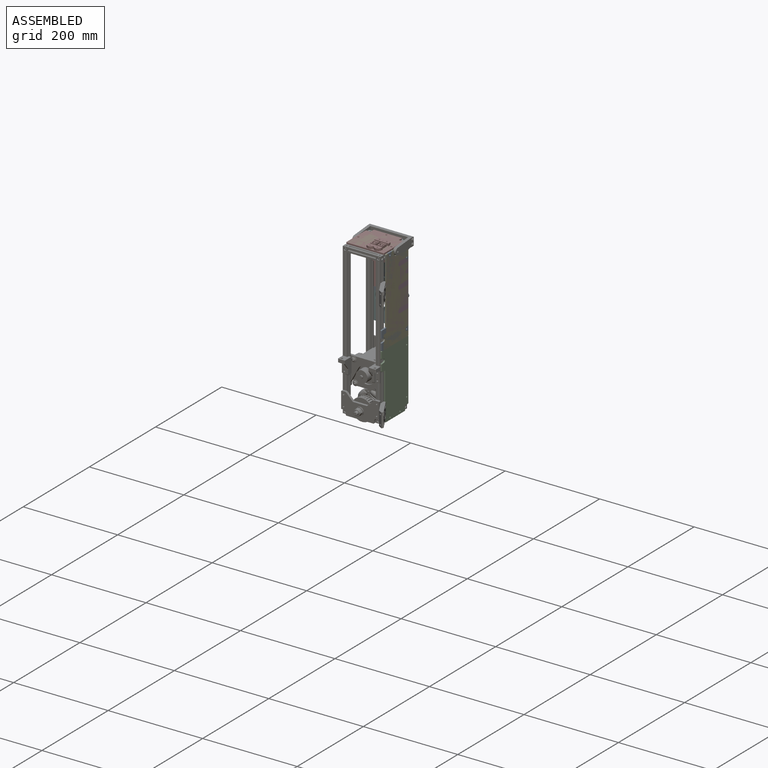
[diagram: assembled view]
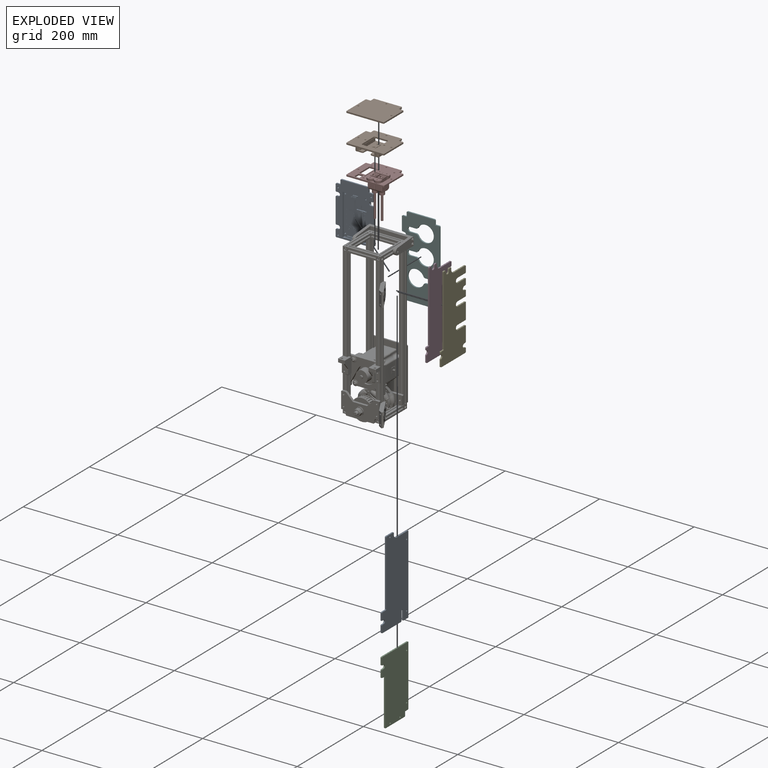
[diagram: exploded view]
GUIDED TOUR — FREECAD ASSEMBLY "colonne-moteur"

This assembly has 10 components, labeled P0..P9 below (a component is one placed body or linked part; the same part can appear more than once), held together by 0 modeled joints plus 39 derived contact edges. A joint is a constraint between two components; its type names the relative motion it leaves free:
  CONTACT — a derived adjacency edge — the two components touch in the source model (clearance under 2% of the assembly's diagonal); it is measured from the geometry, not a modeled constraint.
Axis/direction vectors are unit vectors and 'through' points are millimeter coordinates, both in the assembly's world frame.

MATES
  1. CONTACT "contact_0_1": P0 <-> P1, contact direction (0.000, 0.000, 1.000) through (40.00, 7.00, 319.50) mm (derived from contact, not a modeled constraint)
  2. CONTACT "contact_0_2": P0 <-> P2, contact direction (0.000, 0.000, -1.000) through (40.00, -4.00, 140.00) mm (derived from contact, not a modeled constraint)
  3. CONTACT "contact_0_3": P0 <-> P3, contact direction (1.000, 0.000, 0.000) through (40.00, 74.00, 140.00) mm (derived from contact, not a modeled constraint)
  4. CONTACT "contact_0_4": P0 <-> P4, contact direction (1.000, 0.000, 0.000) through (40.00, 74.00, 140.00) mm (derived from contact, not a modeled constraint)
  5. CONTACT "contact_0_5": P0 <-> P5, contact direction (0.000, 1.000, 0.000) through (40.00, 74.50, 308.00) mm (derived from contact, not a modeled constraint)
  6. CONTACT "contact_0_6": P0 <-> P6, contact direction (0.000, 0.000, -1.000) through (43.00, 37.22, 307.73) mm (derived from contact, not a modeled constraint)
  7. CONTACT "contact_0_7": P0 <-> P7, contact direction (0.000, 0.000, 1.000) through (38.08, 32.38, 319.50) mm (derived from contact, not a modeled constraint)
  8. CONTACT "contact_0_8": P0 <-> P8, contact direction (-0.697, 0.699, -0.163) through (39.14, 76.50, 305.24) mm (derived from contact, not a modeled constraint)
  9. CONTACT "contact_0_9": P0 <-> P9, contact direction (0.000, 0.000, 1.000) through (40.00, 7.00, 319.50) mm (derived from contact, not a modeled constraint)
  10. CONTACT "contact_1_3": P1 <-> P3, contact direction (0.000, 0.000, -1.000) through (40.00, 7.00, 319.50) mm (derived from contact, not a modeled constraint)
  11. CONTACT "contact_1_4": P1 <-> P4, contact direction (0.000, 0.000, -1.000) through (40.00, 7.00, 319.50) mm (derived from contact, not a modeled constraint)
  12. CONTACT "contact_1_5": P1 <-> P5, contact direction (0.000, 1.000, 0.000) through (-29.00, 75.00, 320.00) mm (derived from contact, not a modeled constraint)
  13. CONTACT "contact_1_6": P1 <-> P6, contact direction (0.000, 0.000, -1.000) through (39.50, 5.00, 320.00) mm (derived from contact, not a modeled constraint)
  14. CONTACT "contact_1_7": P1 <-> P7, contact direction (0.000, 0.000, -1.000) through (-39.00, 5.00, 320.00) mm (derived from contact, not a modeled constraint)
  15. CONTACT "contact_1_8": P1 <-> P8, contact direction (-1.000, 0.000, 0.000) through (29.00, 75.00, 320.00) mm (derived from contact, not a modeled constraint)
  16. CONTACT "contact_1_9": P1 <-> P9, contact direction (0.000, 0.000, -1.000) through (-39.00, 5.00, 320.00) mm (derived from contact, not a modeled constraint)
  17. CONTACT "contact_2_3": P2 <-> P3, contact direction (-1.000, 0.000, 0.000) through (43.00, 74.00, 140.00) mm (derived from contact, not a modeled constraint)
  18. CONTACT "contact_2_4": P2 <-> P4, contact direction (-1.000, 0.000, 0.000) through (43.00, 74.00, 140.00) mm (derived from contact, not a modeled constraint)
  19. CONTACT "contact_2_6": P2 <-> P6, contact direction (-1.000, 0.000, 0.000) through (38.25, 65.00, 10.00) mm (derived from contact, not a modeled constraint)
  20. CONTACT "contact_3_4": P3 <-> P4, contact direction (1.000, 0.000, 0.000) through (40.00, 0.00, 141.00) mm (derived from contact, not a modeled constraint)
  21. CONTACT "contact_3_5": P3 <-> P5, contact direction (-0.697, 0.699, -0.163) through (39.50, 74.78, 149.81) mm (derived from contact, not a modeled constraint)
  22. CONTACT "contact_3_6": P3 <-> P6, contact direction (0.000, 0.000, -1.000) through (43.00, 37.22, 307.73) mm (derived from contact, not a modeled constraint)
  23. CONTACT "contact_3_7": P3 <-> P7, contact direction (0.000, 0.000, 1.000) through (38.08, 32.38, 319.50) mm (derived from contact, not a modeled constraint)
  24. CONTACT "contact_3_8": P3 <-> P8, contact direction (-0.697, 0.699, -0.163) through (40.00, 75.00, 285.18) mm (derived from contact, not a modeled constraint)
  25. CONTACT "contact_3_9": P3 <-> P9, contact direction (0.000, 0.000, 1.000) through (40.00, 7.00, 319.50) mm (derived from contact, not a modeled constraint)
  26. CONTACT "contact_4_5": P4 <-> P5, contact direction (0.000, 1.000, 0.000) through (39.99, 75.00, 191.51) mm (derived from contact, not a modeled constraint)
  27. CONTACT "contact_4_6": P4 <-> P6, contact direction (0.000, 0.000, -1.000) through (43.00, 37.22, 307.73) mm (derived from contact, not a modeled constraint)
  28. CONTACT "contact_4_7": P4 <-> P7, contact direction (0.000, 0.000, 1.000) through (38.08, 32.38, 319.50) mm (derived from contact, not a modeled constraint)
  29. CONTACT "contact_4_8": P4 <-> P8, contact direction (0.000, 1.000, 0.000) through (39.50, 75.00, 293.75) mm (derived from contact, not a modeled constraint)
  30. CONTACT "contact_4_9": P4 <-> P9, contact direction (0.000, 0.000, 1.000) through (40.00, 7.00, 319.50) mm (derived from contact, not a modeled constraint)
  31. CONTACT "contact_5_6": P5 <-> P6, contact direction (0.163, -0.066, -0.984) through (40.00, 78.70, 308.50) mm (derived from contact, not a modeled constraint)
  32. CONTACT "contact_5_7": P5 <-> P7, contact direction (0.000, -1.000, 0.000) through (29.00, 75.00, 320.00) mm (derived from contact, not a modeled constraint)
  33. CONTACT "contact_5_8": P5 <-> P8, contact direction (0.000, 1.000, 0.000) through (29.00, 75.00, 320.00) mm (derived from contact, not a modeled constraint)
  34. CONTACT "contact_5_9": P5 <-> P9, contact direction (0.000, -1.000, 0.000) through (-29.00, 75.00, 321.50) mm (derived from contact, not a modeled constraint)
  35. CONTACT "contact_6_7": P6 <-> P7, contact direction (0.000, 0.000, 1.000) through (-37.38, 3.95, 318.95) mm (derived from contact, not a modeled constraint)
  36. CONTACT "contact_6_8": P6 <-> P8, contact direction (-0.163, 0.066, 0.984) through (38.93, 78.90, 306.90) mm (derived from contact, not a modeled constraint)
  37. CONTACT "contact_6_9": P6 <-> P9, contact direction (0.000, 0.000, 1.000) through (40.00, 5.50, 320.00) mm (derived from contact, not a modeled constraint)
  38. CONTACT "contact_7_8": P7 <-> P8, contact direction (-1.000, 0.000, 0.000) through (29.00, 75.00, 320.00) mm (derived from contact, not a modeled constraint)
  39. CONTACT "contact_7_9": P7 <-> P9, contact direction (-0.697, 0.699, -0.163) through (-39.00, 5.00, 320.00) mm (derived from contact, not a modeled constraint)

ASSEMBLY ORDER
  1. P6 — the base component [order heuristic]
  2. P5 — core [order heuristic]
  3. P2 [order verified]
  4. P8 — core [order heuristic]
  5. P0 [order verified]
  6. P4 [order verified]
  7. P3 [order verified]
  8. P7 — core [order heuristic]
  9. P9 — core [order heuristic]
  10. P1 [order verified]
(P3 verified with a relaxed clearance tolerance: the source model stores slight part interference there.)
Order-tag legend:
  [order verified] — this step's position reverses a verified removal order: the component was checked to insert without passing through the ones already placed.
  [order heuristic] — the first 5 components form the assembly's core: parts whose collision-free extraction could not be verified, listed in mate-graph order.

Of the 10 components, 10 carry a construction recipe — the FreeCAD feature program (sketches with constraints, then the solid features that consume them) that regenerates the part from scratch, quoted from this document or from the linked companion document it references; the rest are supplied as boundary geometry only. The tour below walks the components in assembly order: each is shown spotlighted twice — in the assembled view, then in the exploded view, where a leader line traces a displaced component back to its assembled socket (components that stay in place when exploded have no leader line; saturated green if recipe-attached, orange if geometry-only; every other component desaturated gray) — followed by its recipe or geometry summary and the mates that hold it.
NOTE — document 2 of 2 of this assembly tour. The two overview renders and the header above are repeated from document 1; the component sections below continue where the previous document stopped.
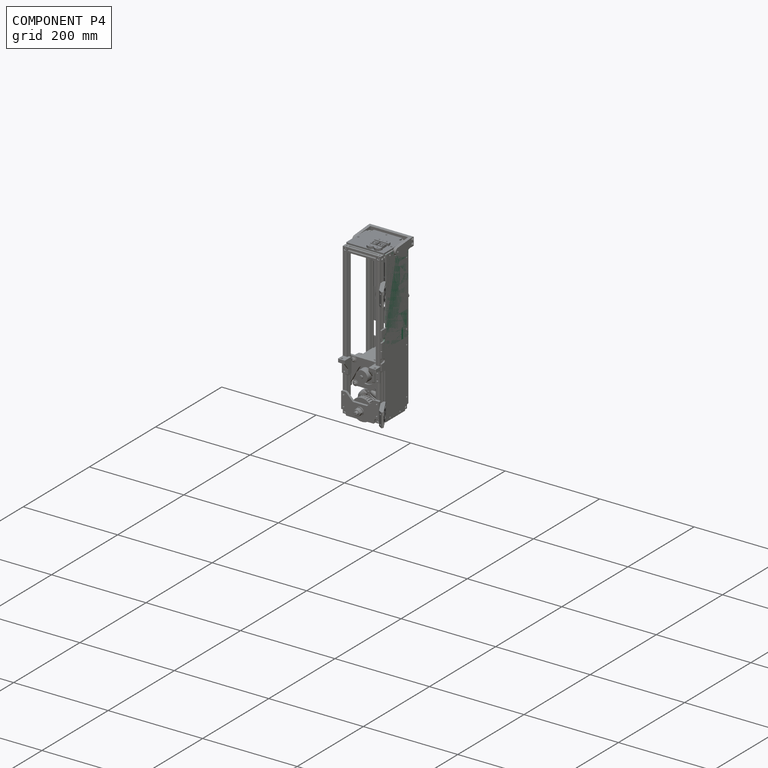
[diagram: component P4 — assembled]
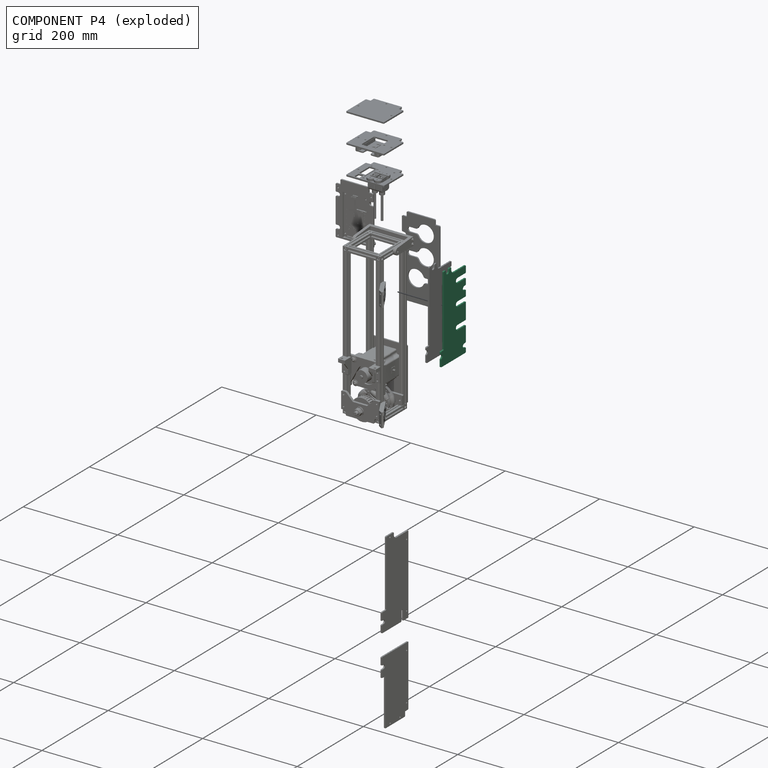
[diagram: component P4 — exploded]
COMPONENT P4 — recipe-attached ("CarterSupRapideCables", modeled in this document).
Held by: resting contact with P0 (derived edge); resting contact with P1 (derived edge); resting contact with P2 (derived edge); resting contact with P3 (derived edge); resting contact with P5 (derived edge); resting contact with P6 (derived edge); resting contact with P7 (derived edge); resting contact with P8 (derived edge); resting contact with P9 (derived edge).
Construction recipe (the document's own serialized feature program — sketch geometry with constraints, then the solid features built on it; lengths are millimeters unless a unit is written):

FEATURE [Part::SubShapeBinder] Import006  label="Import006(PolarPattern005)"
  BindCopyOnChange = 0
  BindMode = 0
  ClaimChildren = false
  Context = -> Group001 [Body095.Import006.]
  EdgeTolerance = 1e-06
  FillStyle = 0
  FixShape = 1
  Fuse = false
  InvalidShape = false
  MakeFace = false
  MergeEdges = true
  OffsetFill = false
  OffsetIntersection = false
  OffsetJoinType = 0
  OffsetOpenResult = false
  Outline = false
  PartialLoad = false
  Relative = true
  SplitEdges = false
  Support = -> [Part005[Part003.Part006.Link017.PolarPattern005.]]
  TightBound = false
  TreeRank = 659
  ValidateShape = false
  _Version = 8
FEATURE [PartDesign::Body] Body095  label="CarterSupRapideCables"
  AutoGroupSolids = false
  BaseFeature = -> Body094
  ClaimAllChildren = false
  ExportMode = 0
  FixShape = 1
  Group = -> [Clone002,Sketch217,Import006,Sketch218,Pad111,Pocket048,Fillet069]
  InvalidShape = false
  Origin = -> Origin188
  SingleSolid = true
  Tip = -> Fillet069
  TreeRank = 657
  ValidateShape = false
  _ExportChildren = -> [Clone002,Import006,Pad111,Pocket048,Fillet069]
  _GroupVersion = 1
FEATURE [PartDesign::FeatureBase] Clone002
  BaseFeature = -> Body094
  FixShape = 1
  InvalidShape = false
  NewSolid = false
  Suppress = false
  TreeRank = 656
  ValidateShape = true
FEATURE [Sketcher::SketchObject] Sketch217
  ArcFitTolerance = 1e-06
  AttachmentSupport = -> [YZ_Plane116]
  ExternalBSplineMaxDegree = 5
  ExternalBSplineTolerance = 0.0001
  ExternalGeometry = -> [Clone002,Import006]
  FixShape = 1
  FullyConstrained = true
  InternalTolerance = 1e-06
  InvalidShape = false
  MakeInternals = false
  MapMode = 5
  Placement = pos=(0,0,0) rot=(0.57735,0.57735,0.57735;2.0944rad)
  Support = -> [YZ_Plane116]
  TreeRank = 658
  ValidateShape = false
  sketch-geometry (16):
    g0: ArcOfCircle CenterX=75 CenterY=287.5 CenterZ=0 NormalX=0 NormalY=0 NormalZ=1 AngleXU=0 Radius=5 StartAngle=4.71239 EndAngle=7.85398
    g1: ArcOfCircle CenterX=50 CenterY=287.5 CenterZ=0 NormalX=0 NormalY=0 NormalZ=1 AngleXU=0 Radius=5 StartAngle=1.5708 EndAngle=4.71239
    g2: LineSegment StartX=75 StartY=292.5 StartZ=0 EndX=50 EndY=292.5 EndZ=0
    g3: LineSegment StartX=50 StartY=282.5 StartZ=0 EndX=75 EndY=282.5 EndZ=0
    g4: ArcOfCircle CenterX=75 CenterY=242.5 CenterZ=0 NormalX=0 NormalY=0 NormalZ=1 AngleXU=0 Radius=5 StartAngle=4.71239 EndAngle=7.85398
    g5: ArcOfCircle CenterX=50 CenterY=242.5 CenterZ=0 NormalX=0 NormalY=0 NormalZ=1 AngleXU=0 Radius=5 StartAngle=1.5708 EndAngle=4.71239
    g6: LineSegment StartX=75 StartY=247.5 StartZ=0 EndX=50 EndY=247.5 EndZ=0
    g7: LineSegment StartX=50 StartY=237.5 StartZ=0 EndX=75 EndY=237.5 EndZ=0
    g8: ArcOfCircle CenterX=75 CenterY=197.5 CenterZ=0 NormalX=0 NormalY=0 NormalZ=1 AngleXU=0 Radius=5 StartAngle=4.71239 EndAngle=7.85398
    g9: ArcOfCircle CenterX=50 CenterY=197.5 CenterZ=0 NormalX=0 NormalY=0 NormalZ=1 AngleXU=0 Radius=5 StartAngle=1.5708 EndAngle=4.71239
    g10: LineSegment StartX=75 StartY=202.5 StartZ=0 EndX=50 EndY=202.5 EndZ=0
    g11: LineSegment StartX=50 StartY=192.5 StartZ=0 EndX=75 EndY=192.5 EndZ=0
    g12: ArcOfCircle CenterX=75.8541 CenterY=265 CenterZ=0 NormalX=0 NormalY=0 NormalZ=1 AngleXU=0 Radius=5 StartAngle=4.54073 EndAngle=8.02564
    g13: ArcOfCircle CenterX=70 CenterY=265 CenterZ=0 NormalX=0 NormalY=0 NormalZ=1 AngleXU=0 Radius=4 StartAngle=1.74246 EndAngle=4.54073
    g14: LineSegment StartX=75 StartY=269.927 StartZ=0 EndX=69.3167 EndY=268.941 EndZ=0
    g15: LineSegment StartX=69.3167 StartY=261.059 StartZ=0 EndX=75 EndY=260.073 EndZ=0
  constraints (40):
    c: Tangent(g0,g2) = -1.5708
    c: Tangent(g2,g1) = -1.5708
    c: Tangent(g1,g3) = -1.5708
    c: Tangent(g3,g0) = -1.5708
    c: Equal(g0,g1)
    c: Horizontal(g2)
    c: Tangent(g4,g6) = -1.5708
    c: Tangent(g6,g5) = -1.5708
    c: Tangent(g5,g7) = -1.5708
    c: Tangent(g7,g4) = -1.5708
    c: Equal(g4,g5)
    c: PointOnObject(g4,g-3)
    c: Horizontal(g6)
    c: Tangent(g8,g10) = -1.5708
    c: Tangent(g10,g9) = -1.5708
    c: Tangent(g9,g11) = -1.5708
    c: Tangent(g11,g8) = -1.5708
    c: Equal(g8,g9)
    c: PointOnObject(g8,g-3)
    c: Horizontal(g10)
    c: Equal(g6,g2)
    c: Equal(g2,g10)
    c: DistanceX(g2,g2) = 25
    c: PointOnObject(g0,g-3)
    c: DistanceY(g0,g0) = 10
    c: DistanceY(g0,g-4) = 22.5
    c: DistanceY(g4,g0) = 45
    c: DistanceY(g8,g4) = 45
    c: Equal(g5,g9)
    c: Equal(g9,g1)
    c: Tangent(g12,g14) = -1.5708
    c: Tangent(g14,g13) = -1.5708
    c: Tangent(g13,g15) = -1.5708
    c: Tangent(g15,g12) = -1.5708
    c: Radius(g13) = 4
    c: Radius(g12) = 5
    c: PointOnObject(g12,g-3)
    c: PointOnObject(g12,g-3)
    c: DistanceX(g13,g12) = 5
    c: DistanceY(g13,g-4) = 45
FEATURE [Sketcher::SketchObject] Sketch218
  ArcFitTolerance = 1e-06
  AttachmentSupport = -> [Clone002]
  ExternalBSplineMaxDegree = 5
  ExternalBSplineTolerance = 0.0001
  ExternalGeometry = -> [Clone002]
  FixShape = 1
  FullyConstrained = true
  InternalTolerance = 1e-06
  InvalidShape = false
  MakeInternals = false
  MapMode = 5
  Placement = pos=(43,-1.03e-14,9.5e-15) rot=(0.57735,0.57735,0.57735;2.0944rad)
  Support = -> [Clone002]
  TreeRank = 660
  ValidateShape = false
  sketch-geometry (4):
    g0: LineSegment StartX=75 StartY=298.631 StartZ=0 EndX=61.7389 EndY=298.631 EndZ=0
    g1: LineSegment StartX=61.7389 StartY=298.631 StartZ=0 EndX=61.7389 EndY=285.369 EndZ=0
    g2: LineSegment StartX=61.7389 StartY=285.369 StartZ=0 EndX=75 EndY=285.369 EndZ=0
    g3: LineSegment StartX=75 StartY=285.369 StartZ=0 EndX=75 EndY=298.631 EndZ=0
  constraints (10):
    c: Coincident(g0,g1)
    c: Coincident(g1,g2)
    c: Coincident(g2,g3)
    c: Coincident(g3,g0)
    c: Horizontal(g0)
    c: Horizontal(g2)
    c: Vertical(g1)
    c: Coincident(g0,g-3)
    c: Coincident(g2,g-4)
    c: Equal(g0,g1)
FEATURE [PartDesign::Pad] Pad111
  AddSubType = 0
  AlongSketchNormal = false
  AutoTaperInnerAngle = true
  BaseFeature = -> Clone002
  CheckUpToFaceLimits = true
  ClaimChildren = false
  Direction = (1,-2e-16,2e-16)
  Fit = 0
  FitJoin = 0
  FixShape = 1
  InnerFit = 0
  InnerFitJoin = 0
  InvalidShape = false
  Length = 3
  Length2 = 10
  Linearize = true
  NewSolid = false
  Profile = -> Sketch218
  ReferenceAxis = -> Sketch218 [N_Axis]
  Refine = true
  Reversed = true
  Suppress = false
  TaperInnerAngle = 0
  TaperInnerAngleRev = 0
  TreeRank = 661
  Type = 0
  ValidateShape = true
  _ProfileBasedVersion = 1
FEATURE [PartDesign::Pocket] Pocket048
  AddSubType = 1
  AlongSketchNormal = false
  AutoTaperInnerAngle = true
  BaseFeature = -> Pad111
  CheckUpToFaceLimits = true
  ClaimChildren = false
  Direction = (-1,2e-16,-3e-16)
  Fit = 0
  FitJoin = 0
  FixShape = 1
  InnerFit = 0
  InnerFitJoin = 0
  InvalidShape = false
  Length = 5
  Length2 = 10
  Linearize = true
  NewSolid = false
  Profile = -> Sketch217
  ReferenceAxis = -> Sketch217 [N_Axis]
  Refine = true
  Reversed = true
  Suppress = false
  TaperInnerAngle = 0
  TaperInnerAngleRev = 0
  TreeRank = 662
  Type = 1
  ValidateShape = true
  _ProfileBasedVersion = 1
  _Version = 1
FEATURE [PartDesign::Fillet] Fillet069
  AddSubType = 0
  Base = -> Pocket048 [Edge116,Edge117,Edge113,Edge112,Edge109,Edge124,Edge121]
  BaseFeature = -> Pocket048
  FixShape = 1
  InvalidShape = false
  NewSolid = false
  Radius = 1
  Refine = true
  SupportTransform = false
  Suppress = false
  TreeRank = 663
  UseAllEdges = false
  ValidateShape = true
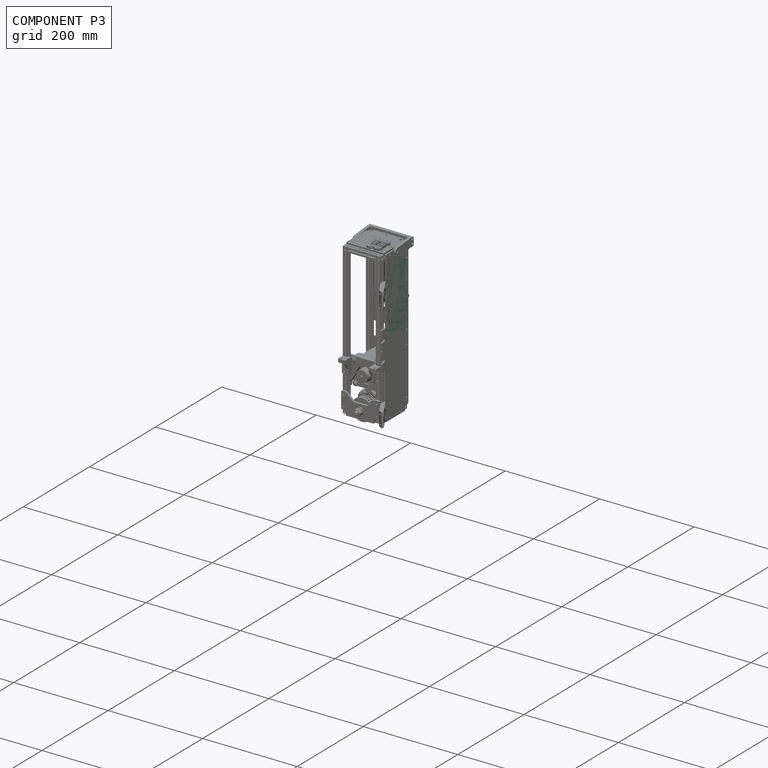
[diagram: component P3 — assembled]
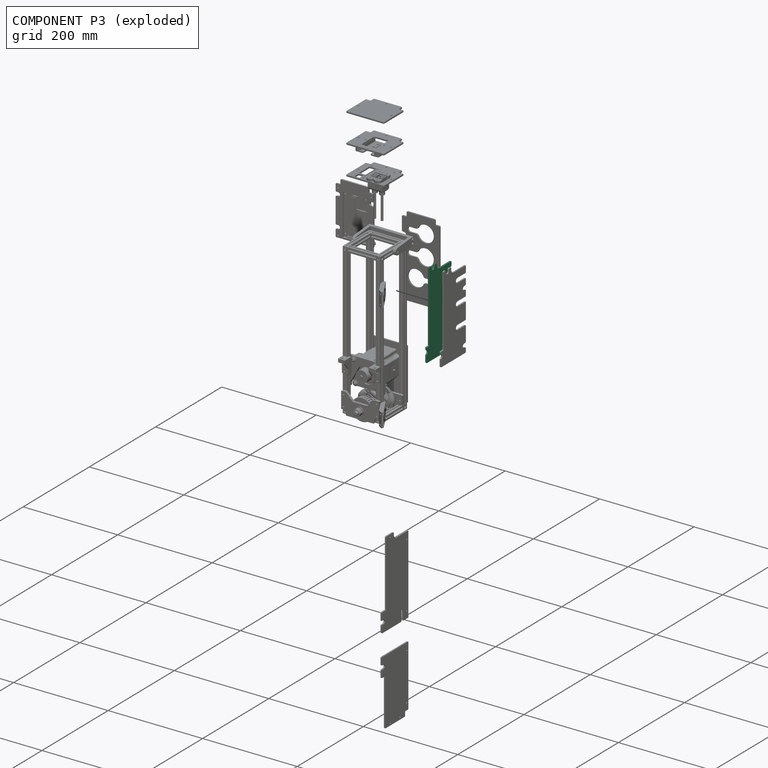
[diagram: component P3 — exploded]
COMPONENT P3 — recipe-attached ("CarterSupRapid", modeled in this document).
Held by: resting contact with P0 (derived edge); resting contact with P1 (derived edge); resting contact with P2 (derived edge); resting contact with P4 (derived edge); resting contact with P5 (derived edge); resting contact with P6 (derived edge); resting contact with P7 (derived edge); resting contact with P8 (derived edge); resting contact with P9 (derived edge).
Construction recipe (the document's own serialized feature program — sketch geometry with constraints, then the solid features built on it; lengths are millimeters unless a unit is written):

FEATURE [PartDesign::Body] Body094  label="CarterSupRapid"
  AutoGroupSolids = false
  BaseFeature = -> Pad
  ClaimAllChildren = false
  ExportMode = 0
  FixShape = 1
  Group = -> [Clone,Sketch215,Pocket,Sketch216,Pocket047,Fillet068,Chamfer075]
  InvalidShape = false
  Origin = -> Origin187
  SingleSolid = true
  Tip = -> Chamfer075
  TreeRank = 633
  ValidateShape = false
  _ExportChildren = -> [Clone,Pocket,Pocket047,Fillet068,Chamfer075]
  _GroupVersion = 1
FEATURE [PartDesign::FeatureBase] Clone
  BaseFeature = -> Pad
  FixShape = 1
  InvalidShape = false
  NewSolid = false
  Placement = pos=(0,0,0) rot=(0.57735,0.57735,0.57735;2.0944rad)
  Suppress = false
  TreeRank = 632
  ValidateShape = false
FEATURE [Sketcher::SketchObject] Sketch215
  ArcFitTolerance = 1e-06
  AttachmentSupport = -> [Clone]
  ExternalBSplineMaxDegree = 5
  ExternalBSplineTolerance = 0.0001
  ExternalGeometry = -> [Clone]
  FixShape = 1
  FullyConstrained = true
  InternalTolerance = 1e-06
  InvalidShape = false
  MakeInternals = false
  MapMode = 5
  Placement = pos=(40,-9.6e-15,1.32e-14) rot=(0.57735,0.57735,-0.57735;4.18879rad)
  Support = -> [Clone]
  TreeRank = 634
  ValidateShape = false
  sketch-geometry (6):
    g0: LineSegment StartX=8 StartY=-170 StartZ=0 EndX=8 EndY=-180 EndZ=0
    g1: LineSegment StartX=8 StartY=-180 StartZ=0 EndX=-5 EndY=-180 EndZ=0
    g2: LineSegment StartX=-5 StartY=-180 StartZ=0 EndX=-5 EndY=-140 EndZ=0
    g3: LineSegment StartX=-5 StartY=-140 StartZ=0 EndX=3.4452e-12 EndY=-140 EndZ=0
    g4: LineSegment StartX=3.4448e-12 StartY=-140 StartZ=0 EndX=3.4448e-12 EndY=-170 EndZ=0
    g5: LineSegment StartX=3.4448e-12 StartY=-170 StartZ=0 EndX=8 EndY=-170 EndZ=0
  constraints (15):
    c: Coincident(g0,g-3)
    c: Vertical(g0)
    c: Coincident(g1,g0)
    c: Coincident(g1,g-4)
    c: Coincident(g2,g1)
    c: Coincident(g2,g-5)
    c: Coincident(g3,g2)
    c: Horizontal(g3)
    c: Coincident(g4,g3)
    c: Vertical(g4)
    c: Coincident(g5,g4)
    c: Coincident(g5,g0)
    c: Horizontal(g5)
    c: DistanceY(g0,g0) = 10
    c: DistanceX(g3,g3) = 5
FEATURE [PartDesign::Pocket] Pocket
  AddSubType = 1
  AlongSketchNormal = false
  AutoTaperInnerAngle = true
  BaseFeature = -> Clone
  CheckUpToFaceLimits = true
  ClaimChildren = false
  Direction = (1,-2e-16,2e-16)
  Fit = 0
  FitJoin = 0
  FixShape = 1
  InnerFit = 0
  InnerFitJoin = 0
  InvalidShape = false
  Length = 5
  Length2 = 10
  Linearize = true
  NewSolid = false
  Profile = -> Sketch215
  ReferenceAxis = -> Sketch215 [N_Axis]
  Refine = true
  Suppress = false
  TaperInnerAngle = 0
  TaperInnerAngleRev = 0
  TreeRank = 635
  Type = 0
  ValidateShape = false
  _ProfileBasedVersion = 1
  _Version = 1
FEATURE [Sketcher::SketchObject] Sketch216
  ArcFitTolerance = 1e-06
  AttachmentSupport = -> [Pocket]
  ExternalBSplineMaxDegree = 5
  ExternalBSplineTolerance = 0.0001
  ExternalGeometry = -> [Pocket]
  FixShape = 1
  FullyConstrained = true
  InternalTolerance = 1e-06
  InvalidShape = false
  MakeInternals = false
  MapMode = 5
  Placement = pos=(43,-1.03e-14,1.42e-14) rot=(0.57735,0.57735,0.57735;2.0944rad)
  Support = -> [Pocket]
  TreeRank = 636
  ValidateShape = false
  sketch-geometry (12):
    g0: ArcOfCircle CenterX=19.5 CenterY=315 CenterZ=0 NormalX=0 NormalY=0 NormalZ=1 AngleXU=0 Radius=4.05403 StartAngle=3.30504 EndAngle=6.11974
    g1: ArcOfCircle CenterX=19.5 CenterY=320.814 CenterZ=0 NormalX=0 NormalY=0 NormalZ=1 AngleXU=0 Radius=5 StartAngle=6.11974 EndAngle=9.58822
    g2: LineSegment StartX=23.5 StartY=314.34 StartZ=0 EndX=24.4334 EndY=320 EndZ=0
    g3: LineSegment StartX=14.5666 StartY=320 StartZ=0 EndX=15.5 EndY=314.34 EndZ=0
    g4: ArcOfCircle CenterX=70 CenterY=292 CenterZ=0 NormalX=0 NormalY=0 NormalZ=1 AngleXU=0 Radius=4.05403 StartAngle=1.73424 EndAngle=4.54894
    g5: ArcOfCircle CenterX=75.8136 CenterY=292 CenterZ=0 NormalX=0 NormalY=0 NormalZ=1 AngleXU=0 Radius=5 StartAngle=4.54894 EndAngle=8.01743
    g6: LineSegment StartX=69.3403 StartY=288 StartZ=0 EndX=75 EndY=287.067 EndZ=0
    g7: LineSegment StartX=75 StartY=296.933 StartZ=0 EndX=69.3403 EndY=296 EndZ=0
    g8: ArcOfCircle CenterX=70 CenterY=155 CenterZ=0 NormalX=0 NormalY=0 NormalZ=1 AngleXU=0 Radius=4.05403 StartAngle=1.73424 EndAngle=4.54894
    g9: ArcOfCircle CenterX=75.8136 CenterY=155 CenterZ=0 NormalX=0 NormalY=0 NormalZ=1 AngleXU=0 Radius=5 StartAngle=4.54894 EndAngle=8.01743
    g10: LineSegment StartX=69.3403 StartY=151 StartZ=0 EndX=75 EndY=150.067 EndZ=0
    g11: LineSegment StartX=75 StartY=159.933 StartZ=0 EndX=69.3403 EndY=159 EndZ=0
  constraints (27):
    c: Tangent(g0,g2) = -1.5708
    c: Tangent(g2,g1) = -1.5708
    c: Tangent(g1,g3) = -1.5708
    c: Tangent(g3,g0) = -1.5708
    c: Coincident(g0,g-3)
    c: Vertical(g1,g0)
    c: Tangent(g4,g6) = -1.5708
    c: Tangent(g6,g5) = -1.5708
    c: Tangent(g5,g7) = -1.5708
    c: Tangent(g7,g4) = -1.5708
    c: Coincident(g4,g-4)
    c: Tangent(g8,g10) = -1.5708
    c: Tangent(g10,g9) = -1.5708
    c: Tangent(g9,g11) = -1.5708
    c: Tangent(g11,g8) = -1.5708
    c: Coincident(g8,g-5)
    c: Horizontal(g5,g4)
    c: Equal(g0,g4)
    c: Equal(g4,g8)
    c: DistanceX(g0,g0) = 8
    c: Equal(g9,g5)
    c: Equal(g9,g1)
    c: Radius(g9) = 5
    c: Horizontal(g9,g8)
    c: PointOnObject(g1,g-7)
    c: PointOnObject(g5,g-6)
    c: PointOnObject(g9,g-6)
FEATURE [PartDesign::Pocket] Pocket047
  AddSubType = 1
  AlongSketchNormal = false
  AutoTaperInnerAngle = true
  BaseFeature = -> Pocket
  CheckUpToFaceLimits = true
  ClaimChildren = false
  Direction = (-1,2e-16,-2e-16)
  Fit = 0
  FitJoin = 0
  FixShape = 1
  InnerFit = 0
  InnerFitJoin = 0
  InvalidShape = false
  Length = 5
  Length2 = 10
  Linearize = true
  NewSolid = false
  Profile = -> Sketch216
  ReferenceAxis = -> Sketch216 [N_Axis]
  Refine = true
  Suppress = false
  TaperInnerAngle = 0
  TaperInnerAngleRev = 0
  TreeRank = 637
  Type = 1
  ValidateShape = false
  _ProfileBasedVersion = 1
  _Version = 1
FEATURE [PartDesign::Fillet] Fillet068
  AddSubType = 0
  Base = -> Pocket047 [Edge54,Edge57,Edge62,Edge65,Edge66,Edge69,Edge2,Edge1]
  BaseFeature = -> Pocket047
  FixShape = 1
  InvalidShape = false
  NewSolid = false
  Radius = 2
  Refine = true
  SupportTransform = false
  Suppress = false
  TreeRank = 638
  UseAllEdges = false
  ValidateShape = false
FEATURE [PartDesign::Chamfer] Chamfer075
  AddSubType = 0
  Angle = 45
  Base = -> Fillet068 [Edge86,Edge72,Edge92,Edge69,Edge67,Edge68,Edge70]
  BaseFeature = -> Fillet068
  ChamferType = 0
  FixShape = 1
  FlipDirection = false
  InvalidShape = false
  NewSolid = false
  Refine = true
  Size = 1
  Size2 = 1
  SupportTransform = false
  Suppress = false
  TreeRank = 639
  UseAllEdges = false
  ValidateShape = false
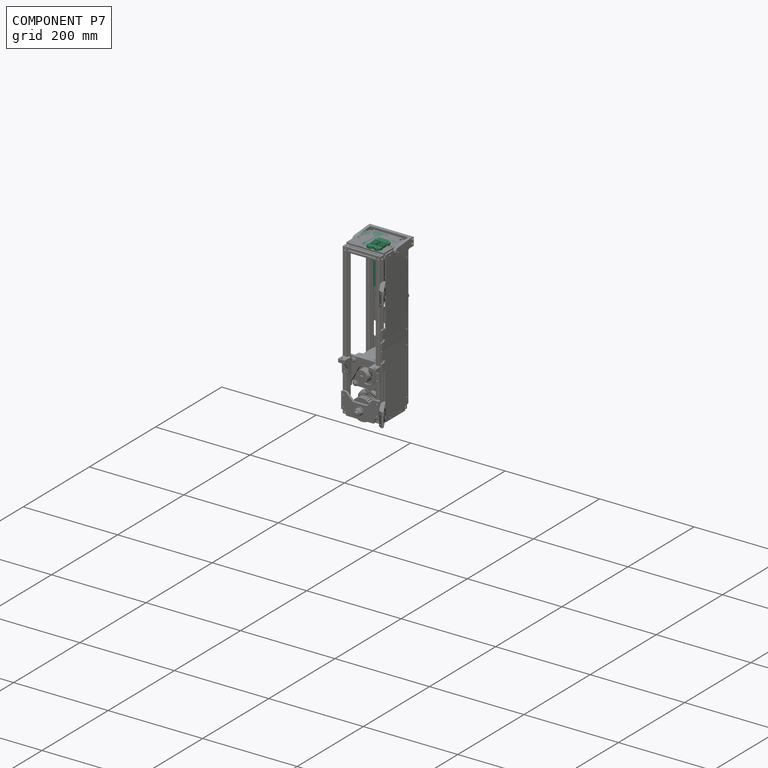
[diagram: component P7 — assembled]
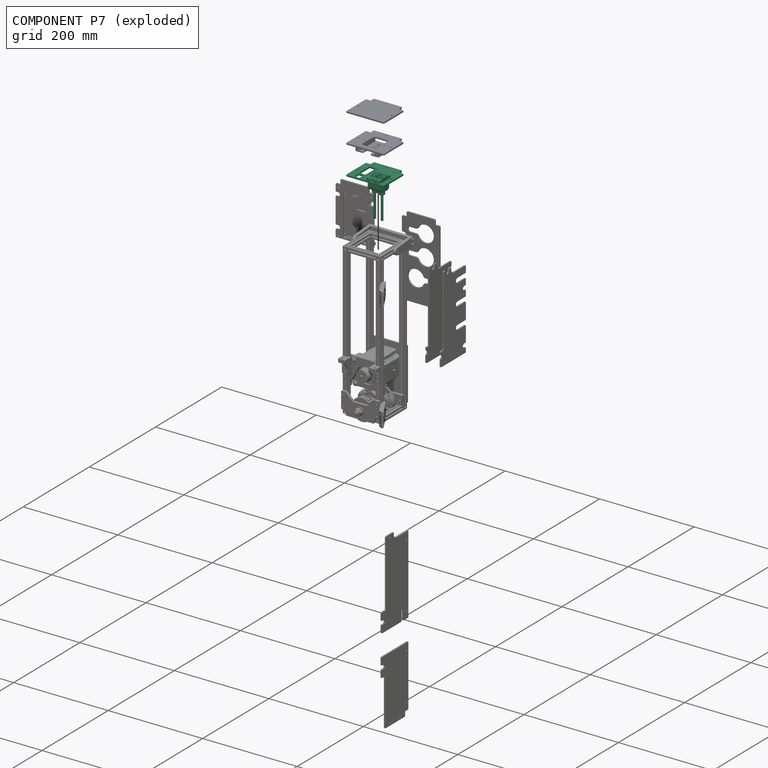
[diagram: component P7 — exploded]
COMPONENT P7 — recipe-attached ("EnsembleCarterIHM-V2", modeled in this document).
Held by: resting contact with P0 (derived edge); resting contact with P1 (derived edge); resting contact with P3 (derived edge); resting contact with P4 (derived edge); resting contact with P5 (derived edge); resting contact with P6 (derived edge); resting contact with P8 (derived edge); resting contact with P9 (derived edge).
Construction recipe (the document's own serialized feature program — sketch geometry with constraints, then the solid features built on it; lengths are millimeters unless a unit is written):

FEATURE [PartDesign::FeatureBase] Clone001
  BaseFeature = -> Body072
  FixShape = 1
  InvalidShape = false
  NewSolid = false
  Placement = pos=(0,35,320) rot=(0,0,1;0rad)
  Suppress = false
  TreeRank = 515
  ValidateShape = false
FEATURE [Sketcher::SketchObject] Sketch203
  ArcFitTolerance = 1e-06
  AttachmentSupport = -> [Clone001]
  ExternalBSplineMaxDegree = 5
  ExternalBSplineTolerance = 0.0001
  ExternalGeometry = -> [Clone001]
  FixShape = 1
  FullyConstrained = true
  InternalTolerance = 1e-06
  InvalidShape = false
  MakeInternals = false
  MapMode = 5
  Placement = pos=(0,35,323) rot=(0,0,1;0rad)
  Support = -> [Clone001]
  TreeRank = 517
  ValidateShape = false
  sketch-geometry (3):
    g0: Circle CenterX=-23.9 CenterY=24.4 CenterZ=0 NormalX=0 NormalY=0 NormalZ=1 AngleXU=0 Radius=1.6
    g1: Circle CenterX=24.1 CenterY=24.4 CenterZ=0 NormalX=0 NormalY=0 NormalZ=1 AngleXU=0 Radius=1.6
    g2: Circle CenterX=-7.9 CenterY=-23.6 CenterZ=0 NormalX=0 NormalY=0 NormalZ=1 AngleXU=0 Radius=1.6
  constraints (9):
    c: DistanceX(g1,g-6) = 5.9
    c: Diameter(g1) = 3.2
    c: DistanceY(g1,g-6) = 5.6
    c: DistanceX(g-3,g0) = 6.1
    c: Equal(g2,g0)
    c: Equal(g0,g1)
    c: DistanceY(g0,g-3) = 5.6
    c: DistanceY(g-4,g2) = 6.4
    c: DistanceX(g-3,g2) = 22.1
FEATURE [PartDesign::Pocket] Pocket039
  AddSubType = 1
  AlongSketchNormal = false
  AutoTaperInnerAngle = true
  BaseFeature = -> Clone001
  CheckUpToFaceLimits = true
  ClaimChildren = false
  Direction = (0,0,-1)
  Fit = 0
  FitJoin = 0
  FixShape = 1
  InnerFit = 0
  InnerFitJoin = 0
  InvalidShape = false
  Length = 5
  Length2 = 10
  Linearize = true
  NewSolid = false
  Profile = -> Sketch203
  ReferenceAxis = -> Sketch203 [N_Axis]
  Refine = true
  Suppress = false
  TaperInnerAngle = 0
  TaperInnerAngleRev = 0
  TreeRank = 518
  Type = 1
  ValidateShape = false
  _ProfileBasedVersion = 1
  _Version = 1
FEATURE [Part::SubShapeBinder] Import004  label="Import004(*PanelUsb (GrabCAD))"
  BindCopyOnChange = 0
  BindMode = 0
  ClaimChildren = false
  Context = -> Group001 [Part011.Body091.Import004.]
  EdgeTolerance = 1e-06
  FillStyle = 0
  FixShape = 1
  Fuse = false
  InvalidShape = false
  MakeFace = false
  MergeEdges = true
  OffsetFill = false
  OffsetIntersection = false
  OffsetJoinType = 0
  OffsetOpenResult = false
  Outline = false
  PartialLoad = false
  Relative = true
  SplitEdges = false
  Support = -> [Link029]
  TightBound = false
  TreeRank = 520
  ValidateShape = false
  _Version = 8
FEATURE [Part::SubShapeBinder] Import005  label="Import005(PanelUsb (GrabCAD))"
  BindCopyOnChange = 0
  BindMode = 0
  ClaimChildren = false
  Context = -> Group001 [Part011.Body091.Import005.]
  EdgeTolerance = 1e-06
  FillStyle = 0
  FixShape = 1
  Fuse = false
  InvalidShape = false
  MakeFace = false
  MergeEdges = true
  OffsetFill = false
  OffsetIntersection = false
  OffsetJoinType = 0
  OffsetOpenResult = false
  Outline = false
  PartialLoad = false
  Relative = true
  SplitEdges = false
  Support = -> [Link028]
  TightBound = false
  TreeRank = 521
  ValidateShape = false
  _Version = 8
FEATURE [Sketcher::SketchObject] Sketch204
  ArcFitTolerance = 1e-06
  AttachmentSupport = -> [Pocket039]
  ExternalBSplineMaxDegree = 5
  ExternalBSplineTolerance = 0.0001
  ExternalGeometry = -> [Import004,Import005]
  FixShape = 1
  FullyConstrained = true
  InternalTolerance = 1e-06
  InvalidShape = false
  MakeInternals = false
  MapMode = 5
  Placement = pos=(0,0,323) rot=(0,0,1;0rad)
  Support = -> [Pocket039]
  TreeRank = 519
  ValidateShape = false
  sketch-geometry (13):
    g0: LineSegment StartX=-0.800044 StartY=38.7 StartZ=0 EndX=30.05 EndY=38.7 EndZ=0
    g1: LineSegment StartX=30.05 StartY=38.7 StartZ=0 EndX=30.05 EndY=15.7 EndZ=0
    g2: LineSegment StartX=30.05 StartY=15.7 StartZ=0 EndX=-0.800044 EndY=15.7 EndZ=0
    g3: LineSegment StartX=-0.800044 StartY=15.7 StartZ=0 EndX=-0.800044 EndY=38.7 EndZ=0
    g4: Circle CenterX=6.99996 CenterY=42.2 CenterZ=0 NormalX=0 NormalY=0 NormalZ=1 AngleXU=0 Radius=1.6
    g5: Circle CenterX=22.25 CenterY=42.2 CenterZ=0 NormalX=0 NormalY=0 NormalZ=1 AngleXU=0 Radius=1.6
    g6: Circle CenterX=6.99996 CenterY=12.2 CenterZ=0 NormalX=0 NormalY=0 NormalZ=1 AngleXU=0 Radius=1.6
    g7: Circle CenterX=22.25 CenterY=12.2 CenterZ=0 NormalX=0 NormalY=0 NormalZ=1 AngleXU=0 Radius=1.6
    g8: LineSegment [constr] StartX=6.99996 StartY=42.2 StartZ=0 EndX=22.25 EndY=42.2 EndZ=0
    g9: LineSegment [constr] StartX=22.25 StartY=42.2 StartZ=0 EndX=22.25 EndY=12.2 EndZ=0
    g10: LineSegment [constr] StartX=22.25 StartY=12.2 StartZ=0 EndX=6.99996 EndY=12.2 EndZ=0
    g11: LineSegment [constr] StartX=6.99996 StartY=12.2 StartZ=0 EndX=6.99996 EndY=42.2 EndZ=0
    g12: LineSegment [constr] StartX=-0.800044 StartY=27.2 StartZ=0 EndX=30.05 EndY=27.2 EndZ=0
  constraints (34):
    c: Coincident(g0,g1)
    c: Coincident(g1,g2)
    c: Coincident(g2,g3)
    c: Coincident(g3,g0)
    c: Horizontal(g0)
    c: Horizontal(g2)
    c: Vertical(g1)
    c: Vertical(g3)
    c: DistanceX(g-4,g1) = 0.3
    c: DistanceY(g1,g-4) = 0.3
    c: DistanceX(g0,g-3) = 0.3
    c: Equal(g6,g7)
    c: Equal(g6,g4)
    c: Equal(g6,g5)
    c: Diameter(g6) = 3.2
    c: DistanceY(g1,g1) = 23
    c: Coincident(g8,g9)
    c: Coincident(g9,g10)
    c: Coincident(g10,g11)
    c: Coincident(g11,g8)
    c: Horizontal(g8)
    c: Horizontal(g10)
    c: Vertical(g9)
    c: Vertical(g11)
    c: Coincident(g8,g4)
    c: Coincident(g9,g7)
    c: Coincident(g6,g10)
    c: Coincident(g8,g5)
    c: PointOnObject(g-5,g9)
    c: PointOnObject(g-6,g11)
    c: PointOnObject(g12,g3)
    c: Symmetric(g1,g0,g12)
    c: Symmetric(g7,g5,g12)
    c: DistanceY(g9,g9) = 30
FEATURE [PartDesign::Pocket] Pocket040
  AddSubType = 1
  AlongSketchNormal = false
  AutoTaperInnerAngle = true
  BaseFeature = -> Pocket039
  CheckUpToFaceLimits = true
  ClaimChildren = false
  Direction = (0,0,-1)
  Fit = 0
  FitJoin = 0
  FixShape = 1
  InnerFit = 0
  InnerFitJoin = 0
  InvalidShape = false
  Length = 5
  Length2 = 10
  Linearize = true
  NewSolid = false
  Profile = -> Sketch204
  ReferenceAxis = -> Sketch204 [N_Axis]
  Refine = true
  Suppress = false
  TaperInnerAngle = 0
  TaperInnerAngleRev = 0
  TreeRank = 522
  Type = 1
  ValidateShape = false
  _ProfileBasedVersion = 1
  _Version = 1
FEATURE [Sketcher::SketchObject] Sketch205
  ArcFitTolerance = 1e-06
  AttachmentSupport = -> [Pocket040]
  ExternalBSplineMaxDegree = 5
  ExternalBSplineTolerance = 0.0001
  FixShape = 1
  FullyConstrained = true
  InternalTolerance = 1e-06
  InvalidShape = false
  MakeInternals = false
  MapMode = 5
  Placement = pos=(0,0,323) rot=(0,0,1;0rad)
  Support = -> [Pocket040]
  TreeRank = 523
  ValidateShape = false
  sketch-geometry (8):
    g0: LineSegment StartX=-25.7536 StartY=55.6513 StartZ=0 EndX=-12.1083 EndY=55.6513 EndZ=0
    g1: LineSegment StartX=-12.1083 StartY=55.6513 StartZ=0 EndX=-12.1083 EndY=24.3652 EndZ=0
    g2: LineSegment StartX=-12.1083 StartY=24.3652 StartZ=0 EndX=-25.7536 EndY=24.3652 EndZ=0
    g3: LineSegment StartX=-25.7536 StartY=24.3652 StartZ=0 EndX=-25.7536 EndY=55.6513 EndZ=0
    g4: LineSegment StartX=-24.1455 StartY=20.5549 StartZ=0 EndX=-13.6365 EndY=20.5549 EndZ=0
    g5: LineSegment StartX=-13.6365 StartY=20.5549 StartZ=0 EndX=-13.6365 EndY=7.64626 EndZ=0
    g6: LineSegment StartX=-13.6365 StartY=7.64626 StartZ=0 EndX=-24.1455 EndY=7.64626 EndZ=0
    g7: LineSegment StartX=-24.1455 StartY=7.64626 StartZ=0 EndX=-24.1455 EndY=20.5549 EndZ=0
  constraints (24):
    c: Coincident(g0,g1)
    c: Coincident(g1,g2)
    c: Coincident(g2,g3)
    c: Coincident(g3,g0)
    c: Horizontal(g0)
    c: Horizontal(g2)
    c: Vertical(g1)
    c: Vertical(g3)
    c: Coincident(g4,g5)
    c: Coincident(g5,g6)
    c: Coincident(g6,g7)
    c: Coincident(g7,g4)
    c: Horizontal(g4)
    c: Horizontal(g6)
    c: Vertical(g5)
    c: Vertical(g7)
    c: Block(g0)
    c: Block(g1)
    c: Block(g2)
    c: Block(g3)
    c: Block(g4)
    c: Block(g7)
    c: Block(g6)
    c: Block(g5)
FEATURE [PartDesign::Pocket] Pocket041
  AddSubType = 1
  AlongSketchNormal = false
  AutoTaperInnerAngle = true
  BaseFeature = -> Pocket040
  CheckUpToFaceLimits = true
  ClaimChildren = false
  Direction = (0,0,-1)
  Fit = 0
  FitJoin = 0
  FixShape = 1
  InnerFit = 0
  InnerFitJoin = 0
  InvalidShape = false
  Length = 5
  Length2 = 10
  Linearize = true
  NewSolid = false
  Profile = -> Sketch205
  ReferenceAxis = -> Sketch205 [N_Axis]
  Refine = true
  Suppress = false
  TaperInnerAngle = 0
  TaperInnerAngleRev = 0
  TreeRank = 524
  Type = 1
  ValidateShape = false
  _ProfileBasedVersion = 1
  _Version = 1
FEATURE [Sketcher::SketchObject] Sketch206
  ArcFitTolerance = 1e-06
  AttachmentSupport = -> [Pocket041]
  ExternalBSplineMaxDegree = 5
  ExternalBSplineTolerance = 0.0001
  FixShape = 1
  FullyConstrained = true
  InternalTolerance = 1e-06
  InvalidShape = false
  MakeInternals = false
  MapMode = 5
  Placement = pos=(0,0,323) rot=(0,0,1;0rad)
  Support = -> [Pocket041]
  TreeRank = 525
  ValidateShape = false
  sketch-geometry (4):
    g0: ArcOfCircle CenterX=-7.86425 CenterY=51.7332 CenterZ=0 NormalX=0 NormalY=0 NormalZ=1 AngleXU=0 Radius=2.75 StartAngle=2e-16 EndAngle=3.14159
    g1: ArcOfCircle CenterX=-7.86425 CenterY=19.7332 CenterZ=0 NormalX=0 NormalY=0 NormalZ=1 AngleXU=0 Radius=2.75 StartAngle=3.14159 EndAngle=6.28319
    g2: LineSegment StartX=-10.6142 StartY=51.7332 StartZ=0 EndX=-10.6142 EndY=19.7332 EndZ=0
    g3: LineSegment StartX=-5.11425 StartY=19.7332 StartZ=0 EndX=-5.11425 EndY=51.7332 EndZ=0
  constraints (9):
    c: Tangent(g0,g2) = -1.5708
    c: Tangent(g2,g1) = -1.5708
    c: Tangent(g1,g3) = -1.5708
    c: Tangent(g3,g0) = -1.5708
    c: Equal(g0,g1)
    c: Vertical(g2)
    c: Diameter(g0) = 5.5
    c: DistanceY(g1,g0) = 32
    c: Block(g3)
FEATURE [PartDesign::Pocket] Pocket042
  AddSubType = 1
  AlongSketchNormal = false
  AutoTaperInnerAngle = true
  BaseFeature = -> Pocket041
  CheckUpToFaceLimits = true
  ClaimChildren = false
  Direction = (0,0,-1)
  Fit = 0
  FitJoin = 0
  FixShape = 1
  InnerFit = 0
  InnerFitJoin = 0
  InvalidShape = false
  Length = 5
  Length2 = 10
  Linearize = true
  NewSolid = false
  Profile = -> Sketch206
  ReferenceAxis = -> Sketch206 [N_Axis]
  Refine = true
  Suppress = false
  TaperInnerAngle = 0
  TaperInnerAngleRev = 0
  TreeRank = 526
  Type = 1
  ValidateShape = false
  _ProfileBasedVersion = 1
  _Version = 1
FEATURE [PartDesign::Body] Body091  label="CarterIHM-V2"
  AutoGroupSolids = false
  BaseFeature = -> Body072
  ClaimAllChildren = false
  ExportMode = 0
  FixShape = 1
  Group = -> [Clone001,Sketch203,Pocket039,Sketch204,Import004,Import005,Pocket040,Sketch205,Pocket041,Sketch206,Pocket042]
  InvalidShape = false
  Origin = -> Origin182
  SingleSolid = true
  Tip = -> Pocket042
  TreeRank = 516
  ValidateShape = false
  _ExportChildren = -> [Clone001,Pocket039,Import004,Import005,Pocket040,Pocket041,Pocket042]
  _GroupVersion = 1
FEATURE [PartDesign::SubShapeBinder] Binder  label="Binder(Pocket042)"
  BindCopyOnChange = 0
  BindMode = 0
  ClaimChildren = false
  Context = -> Group001 [Part011.Body092.Binder.]
  EdgeTolerance = 1e-06
  FillStyle = 0
  FixShape = 1
  Fuse = false
  InvalidShape = false
  MakeFace = true
  MergeEdges = true
  OffsetFill = false
  OffsetIntersection = false
  OffsetJoinType = 0
  OffsetOpenResult = false
  Outline = false
  PartialLoad = false
  Relative = true
  SplitEdges = false
  Support = -> [Body091[Pocket042.Face5]]
  TightBound = false
  TreeRank = 537
  ValidateShape = false
  _Version = 8
FEATURE [Sketcher::SketchObject] Sketch207
  ArcFitTolerance = 1e-06
  AttachmentOffset = pos=(0,0,-1) rot=(0,0,1;0rad)
  AttachmentSupport = -> [Binder]
  ExternalBSplineMaxDegree = 5
  ExternalBSplineTolerance = 0.0001
  ExternalGeometry = -> [Binder]
  FixShape = 1
  FullyConstrained = true
  InternalTolerance = 1e-06
  InvalidShape = false
  MakeInternals = false
  MapMode = 5
  Placement = pos=(0,0,322) rot=(0,0,1;0rad)
  Support = -> [Binder]
  TreeRank = 538
  ValidateShape = false
FEATURE [PartDesign::Pad] Pad107
  AddSubType = 0
  AlongSketchNormal = false
  AutoTaperInnerAngle = true
  CheckUpToFaceLimits = true
  ClaimChildren = false
  Direction = (0,0,1)
  Fit = 0
  FitJoin = 0
  FixShape = 1
  InnerFit = 0
  InnerFitJoin = 0
  InvalidShape = false
  Length = 3
  Length2 = 10
  Linearize = true
  NewSolid = false
  Profile = -> Sketch207
  ReferenceAxis = -> Sketch207 [N_Axis]
  Refine = true
  Reversed = true
  Suppress = false
  TaperInnerAngle = 0
  TaperInnerAngleRev = 0
  TreeRank = 539
  Type = 0
  ValidateShape = false
  _ProfileBasedVersion = 1
FEATURE [Sketcher::SketchObject] Sketch208
  ArcFitTolerance = 1e-06
  AttachmentSupport = -> [Pad107]
  ExternalBSplineMaxDegree = 5
  ExternalBSplineTolerance = 0.0001
  ExternalGeometry = -> [Pad107]
  FixShape = 1
  FullyConstrained = true
  InternalTolerance = 1e-06
  InvalidShape = false
  MakeInternals = false
  MapMode = 5
  Placement = pos=(0,0,319) rot=(1,0,0;3.14159rad)
  Support = -> [Pad107]
  TreeRank = 540
  ValidateShape = false
  sketch-geometry (4):
    g0: ArcOfCircle CenterX=-7.86425 CenterY=-19.7332 CenterZ=0 NormalX=0 NormalY=0 NormalZ=1 AngleXU=0 Radius=3.75 StartAngle=5e-16 EndAngle=3.14159
    g1: ArcOfCircle CenterX=-7.86425 CenterY=-51.7332 CenterZ=0 NormalX=0 NormalY=0 NormalZ=1 AngleXU=0 Radius=3.75 StartAngle=3.14159 EndAngle=6.28319
    g2: LineSegment StartX=-11.6142 StartY=-19.7332 StartZ=0 EndX=-11.6142 EndY=-51.7332 EndZ=0
    g3: LineSegment StartX=-4.11425 StartY=-51.7332 StartZ=0 EndX=-4.11425 EndY=-19.7332 EndZ=0
  constraints (8):
    c: Tangent(g0,g2) = -1.5708
    c: Tangent(g2,g1) = -1.5708
    c: Tangent(g1,g3) = -1.5708
    c: Tangent(g3,g0) = -1.5708
    c: Equal(g0,g1)
    c: Coincident(g0,g-3)
    c: Coincident(g1,g-4)
    c: DistanceX(g0,g-3) = 1
FEATURE [PartDesign::Pad] Pad108
  AddSubType = 0
  AlongSketchNormal = false
  AutoTaperInnerAngle = true
  BaseFeature = -> Pad107
  CheckUpToFaceLimits = true
  ClaimChildren = false
  Direction = (0,0,-1)
  Fit = 0
  FitJoin = 0
  FixShape = 1
  InnerFit = 0
  InnerFitJoin = 0
  InvalidShape = false
  Length = 1
  Length2 = 10
  Linearize = true
  NewSolid = false
  Profile = -> Sketch208
  ReferenceAxis = -> Sketch208 [N_Axis]
  Refine = true
  Reversed = true
  Suppress = false
  TaperInnerAngle = 0
  TaperInnerAngleRev = 0
  TreeRank = 541
  Type = 0
  ValidateShape = false
  _ProfileBasedVersion = 1
FEATURE [PartDesign::Body] Body092  label="CarterLedDiffusant"
  AutoGroupSolids = false
  ClaimAllChildren = false
  ExportMode = 0
  FixShape = 1
  Group = -> [Binder,Sketch207,Pad107,Sketch208,Pad108]
  InvalidShape = false
  Origin = -> Origin183
  SingleSolid = true
  Tip = -> Pad108
  TreeRank = 536
  ValidateShape = false
  _ExportChildren = -> [Binder,Pad107,Pad108]
  _GroupVersion = 1
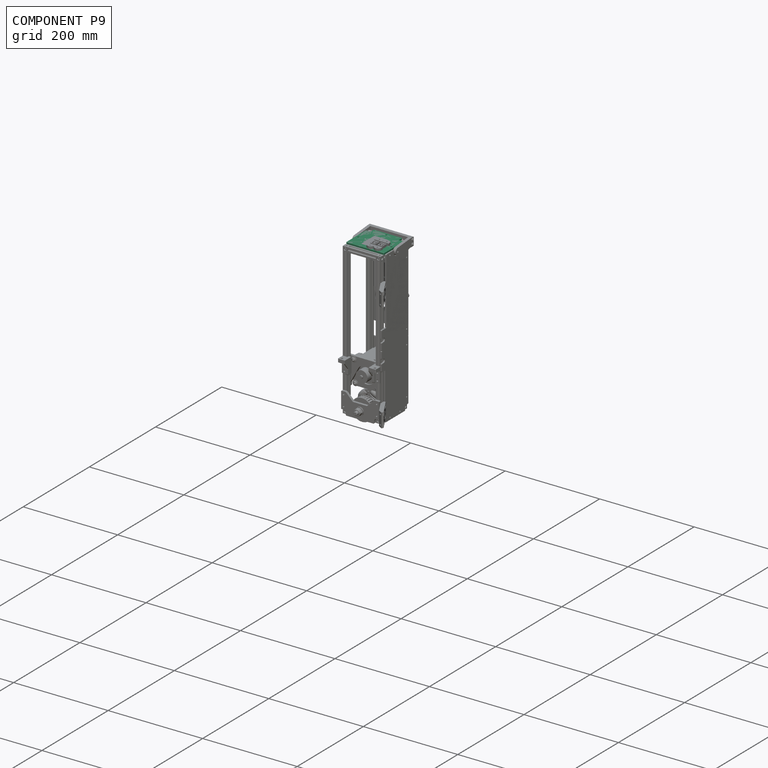
[diagram: component P9 — assembled]
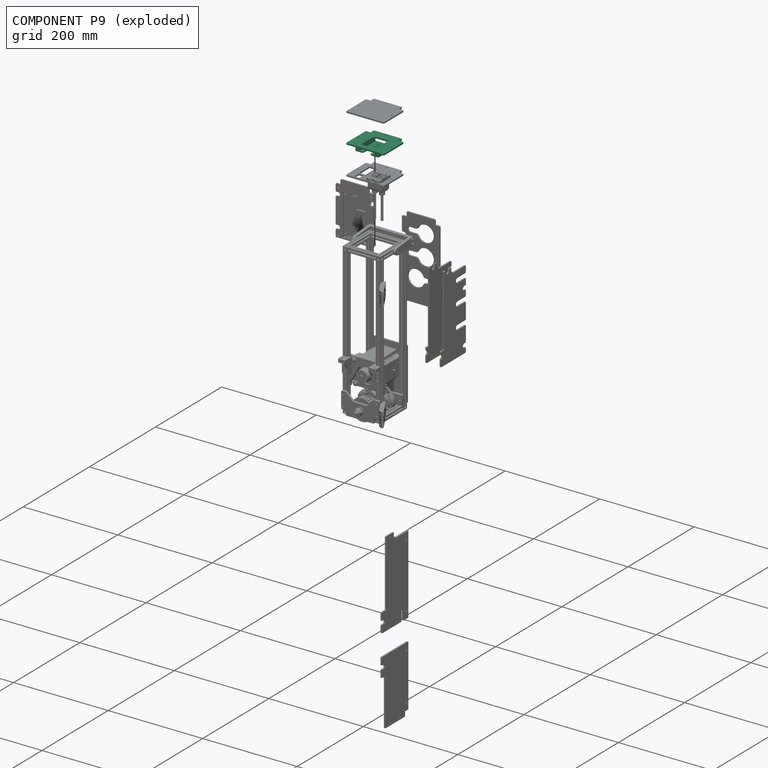
[diagram: component P9 — exploded]
COMPONENT P9 — recipe-attached ("TopXBeeAssembly", modeled in this document).
Held by: resting contact with P0 (derived edge); resting contact with P1 (derived edge); resting contact with P3 (derived edge); resting contact with P4 (derived edge); resting contact with P5 (derived edge); resting contact with P6 (derived edge); resting contact with P7 (derived edge).
Construction recipe (the document's own serialized feature program — sketch geometry with constraints, then the solid features built on it; lengths are millimeters unless a unit is written):

FEATURE [PartDesign::FeatureBase] Clone003
  BaseFeature = -> Body072
  FixShape = 1
  InvalidShape = false
  NewSolid = false
  Placement = pos=(0,35,320) rot=(0,0,1;0rad)
  Suppress = false
  TreeRank = 679
  ValidateShape = true
FEATURE [Sketcher::SketchObject] Sketch219
  ArcFitTolerance = 1e-06
  AttachmentSupport = -> [XY_Plane118]
  ExternalBSplineMaxDegree = 5
  ExternalBSplineTolerance = 0.0001
  FixShape = 1
  FullyConstrained = true
  InternalTolerance = 1e-06
  InvalidShape = false
  MakeInternals = false
  MapMode = 5
  Support = -> [XY_Plane118]
  TreeRank = 694
  ValidateShape = false
  sketch-geometry (5):
    g0: LineSegment StartX=-25 StartY=60 StartZ=0 EndX=-25 EndY=10 EndZ=0
    g1: LineSegment StartX=-25 StartY=10 StartZ=0 EndX=25 EndY=10 EndZ=0
    g2: LineSegment StartX=25 StartY=10 StartZ=0 EndX=25 EndY=60 EndZ=0
    g3: LineSegment StartX=25 StartY=60 StartZ=0 EndX=-25 EndY=60 EndZ=0
    g4: GeomPoint [constr] X=0 Y=35 Z=0
  constraints (13):
    c: Coincident(g0,g1)
    c: Coincident(g1,g2)
    c: Coincident(g2,g3)
    c: Coincident(g3,g0)
    c: Horizontal(g1)
    c: Horizontal(g3)
    c: Vertical(g0)
    c: Vertical(g2)
    c: Symmetric(g1,g0,g4)
    c: PointOnObject(g4,g-2)
    c: Equal(g3,g2)
    c: DistanceX(g3,g3) = 50
    c: DistanceY(g-1,g4) = 35
FEATURE [PartDesign::Pad] Pad112
  AddSubType = 0
  AlongSketchNormal = false
  AutoTaperInnerAngle = true
  CheckUpToFaceLimits = true
  ClaimChildren = false
  Direction = (0,0,1)
  Fit = 0
  FitJoin = 0
  FixShape = 1
  InnerFit = 0
  InnerFitJoin = 0
  InvalidShape = false
  Length = 10
  Length2 = 10
  Linearize = true
  NewSolid = false
  Profile = -> Sketch219
  ReferenceAxis = -> Sketch219 [N_Axis]
  Refine = true
  Reversed = true
  Suppress = false
  TaperInnerAngle = 0
  TaperInnerAngleRev = 0
  TreeRank = 695
  Type = 0
  ValidateShape = true
  _ProfileBasedVersion = 1
FEATURE [Sketcher::SketchObject] Sketch220
  ArcFitTolerance = 1e-06
  AttachmentSupport = -> [XZ_Plane118]
  ExternalBSplineMaxDegree = 5
  ExternalBSplineTolerance = 0.0001
  ExternalGeometry = -> [Pad112]
  FixShape = 1
  FullyConstrained = true
  InternalTolerance = 1e-06
  InvalidShape = false
  MakeInternals = false
  MapMode = 5
  Placement = pos=(0,0,0) rot=(1,0,0;1.5708rad)
  Support = -> [XZ_Plane118]
  TreeRank = 696
  ValidateShape = false
  sketch-geometry (5):
    g0: LineSegment StartX=-15 StartY=-7 StartZ=0 EndX=-15 EndY=0 EndZ=0
    g1: LineSegment StartX=-15 StartY=0 StartZ=0 EndX=15 EndY=0 EndZ=0
    g2: LineSegment StartX=15 StartY=0 StartZ=0 EndX=15 EndY=-7 EndZ=0
    g3: LineSegment StartX=15 StartY=-7 StartZ=0 EndX=-15 EndY=-7 EndZ=0
    g4: GeomPoint [constr] X=0 Y=-3.5 Z=0
  constraints (13):
    c: Coincident(g0,g1)
    c: Coincident(g1,g2)
    c: Coincident(g2,g3)
    c: Coincident(g3,g0)
    c: Horizontal(g1)
    c: Horizontal(g3)
    c: Vertical(g0)
    c: Vertical(g2)
    c: Symmetric(g1,g0,g4)
    c: PointOnObject(g4,g-2)
    c: PointOnObject(g1,g-1)
    c: DistanceY(g-3,g2) = 3
    c: DistanceX(g1,g1) = 30
FEATURE [PartDesign::Pocket] Pocket049
  AddSubType = 1
  AlongSketchNormal = false
  AutoTaperInnerAngle = true
  BaseFeature = -> Pad112
  CheckUpToFaceLimits = true
  ClaimChildren = false
  Direction = (0,1,-2e-16)
  Fit = 0
  FitJoin = 0
  FixShape = 1
  InnerFit = 0
  InnerFitJoin = 0
  InvalidShape = false
  Length = 5
  Length2 = 10
  Linearize = true
  NewSolid = false
  Profile = -> Sketch220
  ReferenceAxis = -> Sketch220 [N_Axis]
  Refine = true
  Suppress = false
  TaperInnerAngle = 0
  TaperInnerAngleRev = 0
  TreeRank = 697
  Type = 1
  ValidateShape = true
  _ProfileBasedVersion = 1
  _Version = 1
FEATURE [Sketcher::SketchObject] Sketch221
  ArcFitTolerance = 1e-06
  AttachmentSupport = -> [XY_Plane118]
  ExternalBSplineMaxDegree = 5
  ExternalBSplineTolerance = 0.0001
  ExternalGeometry = -> [Pocket049]
  FixShape = 1
  FullyConstrained = true
  InternalTolerance = 1e-06
  InvalidShape = false
  MakeInternals = false
  MapMode = 5
  Support = -> [XY_Plane118]
  TreeRank = 698
  ValidateShape = false
  sketch-geometry (2):
    g0: Circle CenterX=-20 CenterY=35 CenterZ=0 NormalX=0 NormalY=0 NormalZ=1 AngleXU=0 Radius=2.1
    g1: Circle CenterX=20 CenterY=35 CenterZ=0 NormalX=0 NormalY=0 NormalZ=1 AngleXU=0 Radius=2.1
  constraints (5):
    c: Equal(g1,g0)
    c: Diameter(g1) = 4.2
    c: Symmetric(g0,g1,g-2)
    c: DistanceX(g0,g1) = 40
    c: DistanceY(g-3,g1) = 25
FEATURE [PartDesign::Pocket] Pocket050
  AddSubType = 1
  AlongSketchNormal = false
  AutoTaperInnerAngle = true
  BaseFeature = -> Pocket049
  CheckUpToFaceLimits = true
  ClaimChildren = false
  Direction = (0,0,-1)
  Fit = 0
  FitJoin = 0
  FixShape = 1
  InnerFit = 0
  InnerFitJoin = 0
  InvalidShape = false
  Length = 5
  Length2 = 10
  Linearize = true
  NewSolid = false
  Profile = -> Sketch221
  ReferenceAxis = -> Sketch221 [N_Axis]
  Refine = true
  Suppress = false
  TaperInnerAngle = 0
  TaperInnerAngleRev = 0
  TreeRank = 699
  Type = 1
  ValidateShape = true
  _ProfileBasedVersion = 1
  _Version = 1
FEATURE [Sketcher::SketchObject] Sketch222
  ArcFitTolerance = 1e-06
  AttachmentSupport = -> [Pocket050]
  ExternalBSplineMaxDegree = 5
  ExternalBSplineTolerance = 0.0001
  ExternalGeometry = -> [Pocket050]
  FixShape = 1
  FullyConstrained = true
  InternalTolerance = 1e-06
  InvalidShape = false
  MakeInternals = false
  MapMode = 5
  Placement = pos=(0,-1.6e-15,-7) rot=(0,0,1;0rad)
  Support = -> [Pocket050]
  TreeRank = 700
  ValidateShape = false
  sketch-geometry (5):
    g0: ArcOfCircle CenterX=0 CenterY=45 CenterZ=0 NormalX=0 NormalY=0 NormalZ=1 AngleXU=0 Radius=5 StartAngle=2.58e-14 EndAngle=3.14159
    g1: ArcOfCircle CenterX=0 CenterY=32 CenterZ=0 NormalX=0 NormalY=0 NormalZ=1 AngleXU=0 Radius=5 StartAngle=3.14159 EndAngle=6.28319
    g2: LineSegment StartX=-5 StartY=45 StartZ=0 EndX=-5 EndY=32 EndZ=0
    g3: LineSegment StartX=5 StartY=32 StartZ=0 EndX=5 EndY=45 EndZ=0
    g4: LineSegment [constr] StartX=-20 StartY=35 StartZ=0 EndX=20 EndY=35 EndZ=0
  constraints (12):
    c: Tangent(g0,g2) = -1.5708
    c: Tangent(g2,g1) = -1.5708
    c: Tangent(g1,g3) = -1.5708
    c: Tangent(g3,g0) = -1.5708
    c: Equal(g0,g1)
    c: PointOnObject(g0,g-2)
    c: DistanceY(g1,g0) = 13
    c: Radius(g0) = 5
    c: Coincident(g4,g-3)
    c: Coincident(g4,g-4)
    c: DistanceY(g1,g-4) = 3
    c: PointOnObject(g1,g-2)
FEATURE [PartDesign::Pad] Pad113
  AddSubType = 0
  AlongSketchNormal = false
  AutoTaperInnerAngle = true
  BaseFeature = -> Pocket050
  CheckUpToFaceLimits = true
  ClaimChildren = false
  Direction = (0,2e-16,1)
  Fit = 0
  FitJoin = 0
  FixShape = 1
  InnerFit = 0
  InnerFitJoin = 0
  InvalidShape = false
  Length = 3
  Length2 = 10
  Linearize = true
  NewSolid = false
  Profile = -> Sketch222
  ReferenceAxis = -> Sketch222 [N_Axis]
  Refine = true
  Suppress = false
  TaperInnerAngle = 0
  TaperInnerAngleRev = 0
  TreeRank = 701
  Type = 0
  ValidateShape = true
  _ProfileBasedVersion = 1
FEATURE [Sketcher::SketchObject] Sketch223
  ArcFitTolerance = 1e-06
  AttachmentSupport = -> [Pad113]
  ExternalBSplineMaxDegree = 5
  ExternalBSplineTolerance = 0.0001
  ExternalGeometry = -> [Pad113]
  FixShape = 1
  FullyConstrained = true
  InternalTolerance = 1e-06
  InvalidShape = false
  MakeInternals = false
  MapMode = 5
  Placement = pos=(0,0,-4) rot=(0,0,1;0rad)
  Support = -> [Pad113]
  TreeRank = 702
  ValidateShape = false
  sketch-geometry (2):
    g0: Circle CenterX=0 CenterY=45 CenterZ=0 NormalX=0 NormalY=0 NormalZ=1 AngleXU=0 Radius=2.1
    g1: Circle CenterX=0 CenterY=32 CenterZ=0 NormalX=0 NormalY=0 NormalZ=1 AngleXU=0 Radius=2.1
  constraints (4):
    c: Coincident(g0,g-3)
    c: Coincident(g1,g-4)
    c: Equal(g0,g1)
    c: Diameter(g0) = 4.2
FEATURE [PartDesign::Pocket] Pocket051
  AddSubType = 1
  AlongSketchNormal = false
  AutoTaperInnerAngle = true
  BaseFeature = -> Pad113
  CheckUpToFaceLimits = true
  ClaimChildren = false
  Direction = (0,0,-1)
  Fit = 0
  FitJoin = 0
  FixShape = 1
  InnerFit = 0
  InnerFitJoin = 0
  InvalidShape = false
  Length = 7
  Length2 = 10
  Linearize = true
  NewSolid = false
  Profile = -> Sketch223
  ReferenceAxis = -> Sketch223 [N_Axis]
  Refine = true
  Suppress = false
  TaperInnerAngle = 0
  TaperInnerAngleRev = 0
  TreeRank = 703
  Type = 0
  ValidateShape = true
  _ProfileBasedVersion = 1
  _Version = 1
FEATURE [Sketcher::SketchObject] Sketch224
  ArcFitTolerance = 1e-06
  AttachmentSupport = -> [Pocket051]
  ExternalBSplineMaxDegree = 5
  ExternalBSplineTolerance = 0.0001
  ExternalGeometry = -> [Pocket051]
  FixShape = 1
  FullyConstrained = true
  InternalTolerance = 1e-06
  InvalidShape = false
  MakeInternals = false
  MapMode = 5
  Placement = pos=(0,-1.6e-15,-7) rot=(0,0,1;0rad)
  Support = -> [Pocket051]
  TreeRank = 704
  ValidateShape = false
  sketch-geometry (5):
    g0: LineSegment StartX=-7.5 StartY=22 StartZ=0 EndX=-7.5 EndY=10 EndZ=0
    g1: LineSegment StartX=-7.5 StartY=10 StartZ=0 EndX=7.5 EndY=10 EndZ=0
    g2: LineSegment StartX=7.5 StartY=10 StartZ=0 EndX=7.5 EndY=22 EndZ=0
    g3: LineSegment StartX=7.5 StartY=22 StartZ=0 EndX=-7.5 EndY=22 EndZ=0
    g4: GeomPoint [constr] X=0 Y=16 Z=0
  constraints (13):
    c: Coincident(g0,g1)
    c: Coincident(g1,g2)
    c: Coincident(g2,g3)
    c: Coincident(g3,g0)
    c: Horizontal(g1)
    c: Horizontal(g3)
    c: Vertical(g0)
    c: Vertical(g2)
    c: Symmetric(g1,g0,g4)
    c: PointOnObject(g4,g-2)
    c: PointOnObject(g1,g-3)
    c: DistanceX(g3,g3) = 15
    c: DistanceY(g2,g2) = 12
FEATURE [PartDesign::Pocket] Pocket052
  AddSubType = 1
  AlongSketchNormal = false
  AutoTaperInnerAngle = true
  BaseFeature = -> Pocket051
  CheckUpToFaceLimits = true
  ClaimChildren = false
  Direction = (0,-2e-16,-1)
  Fit = 0
  FitJoin = 0
  FixShape = 1
  InnerFit = 0
  InnerFitJoin = 0
  InvalidShape = false
  Length = 5
  Length2 = 10
  Linearize = true
  NewSolid = false
  Profile = -> Sketch224
  ReferenceAxis = -> Sketch224 [N_Axis]
  Refine = true
  Suppress = false
  TaperInnerAngle = 0
  TaperInnerAngleRev = 0
  TreeRank = 705
  Type = 1
  ValidateShape = true
  _ProfileBasedVersion = 1
  _Version = 1
FEATURE [PartDesign::Fillet] Fillet070
  AddSubType = 0
  Base = -> Pocket052 [Edge15,Edge46,Edge44,Edge47]
  BaseFeature = -> Pocket052
  FixShape = 1
  InvalidShape = false
  NewSolid = false
  Radius = 3
  Refine = true
  SupportTransform = false
  Suppress = false
  TreeRank = 706
  UseAllEdges = false
  ValidateShape = true
FEATURE [PartDesign::Chamfer] Chamfer076
  AddSubType = 0
  Angle = 45
  Base = -> Fillet070 [Edge42,Edge36,Edge67,Edge37,Edge71,Edge39,Edge69,Edge38]
  BaseFeature = -> Fillet070
  ChamferType = 0
  FixShape = 1
  FlipDirection = false
  InvalidShape = false
  NewSolid = false
  Refine = true
  Size = 1
  Size2 = 1
  SupportTransform = false
  Suppress = false
  TreeRank = 707
  UseAllEdges = false
  ValidateShape = true
FEATURE [PartDesign::Fillet] Fillet071
  AddSubType = 0
  Base = -> Chamfer076 [Edge38,Edge35,Edge26,Edge23,Edge44,Edge33,Edge31,Edge21]
  BaseFeature = -> Chamfer076
  FixShape = 1
  InvalidShape = false
  NewSolid = false
  Radius = 3
  Refine = true
  SupportTransform = false
  Suppress = false
  TreeRank = 708
  UseAllEdges = false
  ValidateShape = true
FEATURE [Sketcher::SketchObject] Sketch225
  ArcFitTolerance = 1e-06
  AttachmentSupport = -> [Clone003]
  ExternalBSplineMaxDegree = 5
  ExternalBSplineTolerance = 0.0001
  FixShape = 1
  FullyConstrained = true
  InternalTolerance = 1e-06
  InvalidShape = false
  MakeInternals = false
  MapMode = 5
  Placement = pos=(0,35,320) rot=(1,0,0;3.14159rad)
  Support = -> [Clone003]
  TreeRank = 709
  ValidateShape = false
  sketch-geometry (12):
    g0: ArcOfCircle CenterX=-12 CenterY=17 CenterZ=0 NormalX=0 NormalY=0 NormalZ=1 AngleXU=0 Radius=3 StartAngle=1.5708 EndAngle=3.14159
    g1: LineSegment StartX=-12 StartY=20 StartZ=0 EndX=12 EndY=20 EndZ=0
    g2: ArcOfCircle CenterX=12 CenterY=17 CenterZ=0 NormalX=0 NormalY=0 NormalZ=1 AngleXU=0 Radius=3 StartAngle=0 EndAngle=1.5708
    g3: LineSegment StartX=15 StartY=17 StartZ=0 EndX=15 EndY=-17 EndZ=0
    g4: ArcOfCircle CenterX=12 CenterY=-17 CenterZ=0 NormalX=0 NormalY=0 NormalZ=1 AngleXU=0 Radius=3 StartAngle=4.71239 EndAngle=6.28319
    g5: LineSegment StartX=12 StartY=-20 StartZ=0 EndX=-12 EndY=-20 EndZ=0
    g6: ArcOfCircle CenterX=-12 CenterY=-17 CenterZ=0 NormalX=0 NormalY=0 NormalZ=1 AngleXU=0 Radius=3 StartAngle=3.14159 EndAngle=4.71239
    g7: LineSegment StartX=-15 StartY=-17 StartZ=0 EndX=-15 EndY=17 EndZ=0
    g8: GeomPoint [constr] X=-15 Y=20 Z=0
    g9: GeomPoint [constr] X=15 Y=-20 Z=0
    g10: Circle CenterX=-20 CenterY=0 CenterZ=0 NormalX=0 NormalY=0 NormalZ=1 AngleXU=0 Radius=1.6
    g11: Circle CenterX=20 CenterY=0 CenterZ=0 NormalX=0 NormalY=0 NormalZ=1 AngleXU=0 Radius=1.6
  constraints (28):
    c: Tangent(g0,g1) = 1.5708
    c: Tangent(g1,g2) = 1.5708
    c: Tangent(g2,g3) = 1.5708
    c: Tangent(g3,g4) = 1.5708
    c: Tangent(g4,g5) = 1.5708
    c: Tangent(g5,g6) = 1.5708
    c: Tangent(g6,g7) = 1.5708
    c: Tangent(g7,g0) = 1.5708
    c: Horizontal(g1)
    c: Horizontal(g5)
    c: Vertical(g3)
    c: Vertical(g7)
    c: Equal(g0,g2)
    c: Equal(g2,g4)
    c: Equal(g4,g6)
    c: PointOnObject(g8,g1)
    c: PointOnObject(g8,g7)
    c: PointOnObject(g9,g3)
    c: PointOnObject(g9,g5)
    c: Radius(g2) = 3
    c: DistanceY(g4,g1) = 40
    c: DistanceX(g0,g2) = 30
    c: Symmetric(g2,g6,g-1)
    c: PointOnObject(g10,g-1)
    c: Symmetric(g11,g10,g-1)
    c: Equal(g11,g10)
    c: Diameter(g11) = 3.2
    c: DistanceX(g10,g11) = 40
FEATURE [PartDesign::Pocket] Pocket053
  AddSubType = 1
  AlongSketchNormal = false
  AutoTaperInnerAngle = true
  BaseFeature = -> Clone003
  CheckUpToFaceLimits = true
  ClaimChildren = false
  Direction = (0,0,1)
  Fit = 0
  FitJoin = 0
  FixShape = 1
  InnerFit = 0
  InnerFitJoin = 0
  InvalidShape = false
  Length = 5
  Length2 = 10
  Linearize = true
  NewSolid = false
  Profile = -> Sketch225
  ReferenceAxis = -> Sketch225 [N_Axis]
  Refine = true
  Suppress = false
  TaperInnerAngle = 0
  TaperInnerAngleRev = 0
  TreeRank = 710
  Type = 1
  ValidateShape = true
  _ProfileBasedVersion = 1
  _Version = 1
FEATURE [PartDesign::Body] Body096  label="CarterTopXBee"
  AutoGroupSolids = false
  BaseFeature = -> Body072
  ClaimAllChildren = false
  ExportMode = 0
  FixShape = 1
  Group = -> [Clone003,Sketch225,Pocket053]
  InvalidShape = false
  Origin = -> Origin189
  SingleSolid = true
  Tip = -> Pocket053
  TreeRank = 680
  ValidateShape = false
  _ExportChildren = -> [Clone003,Pocket053]
  _GroupVersion = 1
FEATURE [PartDesign::Chamfer] Chamfer077
  AddSubType = 0
  Angle = 45
  Base = -> Fillet071 [Edge3]
  BaseFeature = -> Fillet071
  ChamferType = 0
  FixShape = 1
  FlipDirection = false
  InvalidShape = false
  NewSolid = false
  Refine = true
  Size = 0.4
  Size2 = 1
  SupportTransform = false
  Suppress = false
  TreeRank = 711
  UseAllEdges = false
  ValidateShape = true
FEATURE [PartDesign::Chamfer] Chamfer078
  AddSubType = 0
  Angle = 45
  Base = -> Chamfer077 [Edge100,Edge65,Edge148,Edge122,Edge102,Edge89]
  BaseFeature = -> Chamfer077
  ChamferType = 0
  FixShape = 1
  FlipDirection = false
  InvalidShape = false
  NewSolid = false
  Refine = true
  Size = 0.4
  Size2 = 1
  SupportTransform = false
  Suppress = false
  TreeRank = 712
  UseAllEdges = false
  ValidateShape = true
FEATURE [PartDesign::Body] Body097  label="SupportXBee"
  AutoGroupSolids = false
  ClaimAllChildren = false
  ExportMode = 0
  FixShape = 1
  Group = -> [Sketch219,Pad112,Sketch220,Pocket049,Sketch221,Pocket050,Sketch222,Pad113,Sketch223,Pocket051,Sketch224,Pocket052,Fillet070,Chamfer076,Fillet071,Chamfer077,Chamfer078]
  InvalidShape = false
  Origin = -> Origin191
  Placement = pos=(0,0,320) rot=(0,0,1;0rad)
  SingleSolid = true
  Tip = -> Chamfer078
  TreeRank = 693
  ValidateShape = false
  _ExportChildren = -> [Pad112,Pocket049,Pocket050,Pad113,Pocket051,Pocket052,Fillet070,Chamfer076,Fillet071,Chamfer077,Chamfer078]
  _GroupVersion = 1
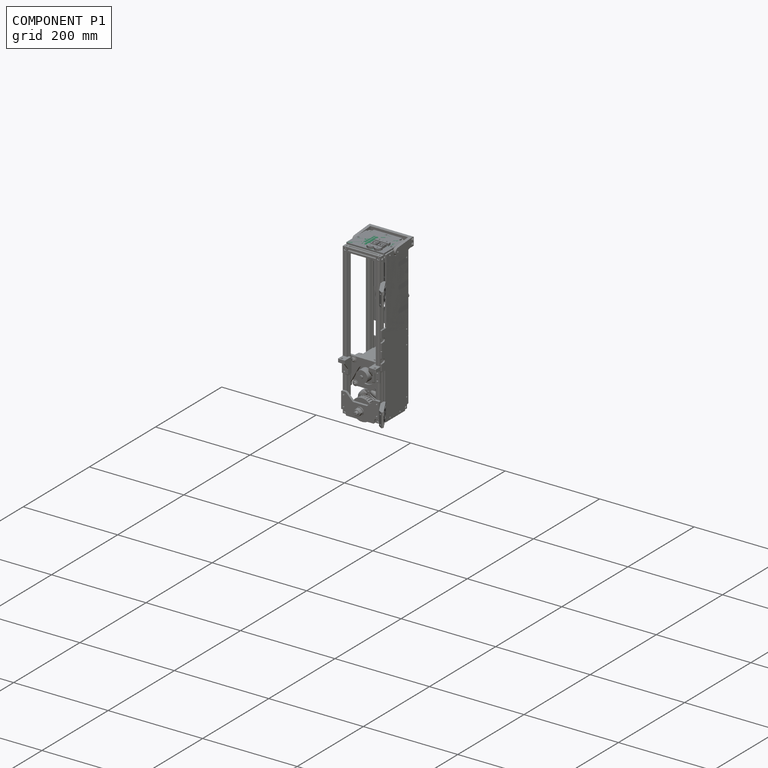
[diagram: component P1 — assembled]
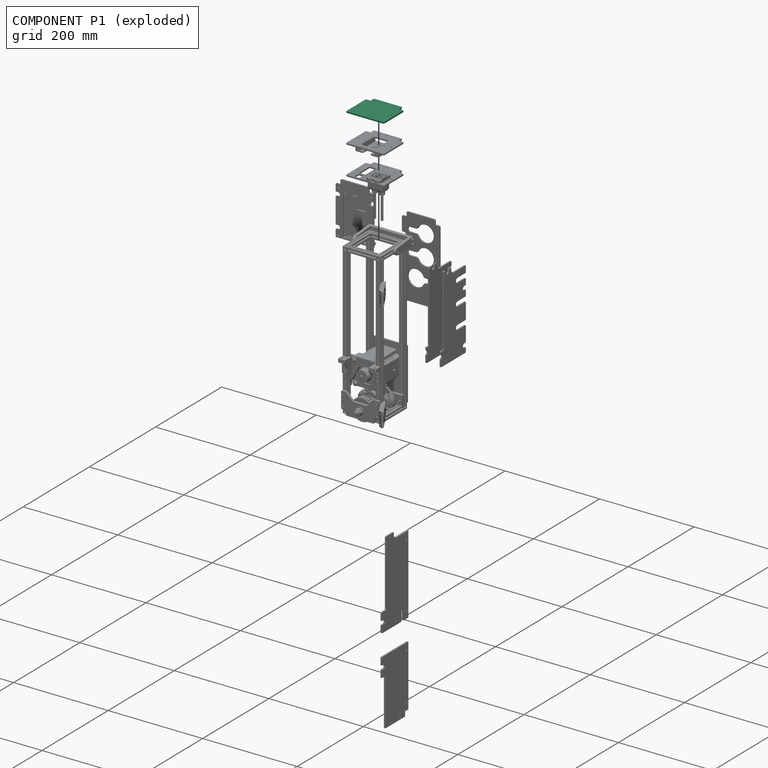
[diagram: component P1 — exploded]
COMPONENT P1 — recipe-attached ("CarterTop", modeled in this document).
Held by: resting contact with P0 (derived edge); resting contact with P3 (derived edge); resting contact with P4 (derived edge); resting contact with P5 (derived edge); resting contact with P6 (derived edge); resting contact with P7 (derived edge); resting contact with P8 (derived edge); resting contact with P9 (derived edge).
Construction recipe (the document's own serialized feature program — sketch geometry with constraints, then the solid features built on it; lengths are millimeters unless a unit is written):

FEATURE [Sketcher::SketchObject] Sketch152
  ArcFitTolerance = 0
  AttachmentSupport = -> [XY_Plane089]
  ExternalBSplineMaxDegree = 0
  ExternalBSplineTolerance = 0
  FullyConstrained = true
  InternalTolerance = 1e-06
  InvalidShape = false
  MakeInternals = false
  MapMode = 5
  Support = -> [XY_Plane089]
  TreeRank = 0
  ValidateShape = true
  sketch-geometry (11):
    g0: LineSegment StartX=40 StartY=-30 StartZ=0 EndX=-40 EndY=-30 EndZ=0
    g1: LineSegment StartX=-40 StartY=-30 StartZ=0 EndX=-40 EndY=30 EndZ=0
    g2: LineSegment StartX=-40 StartY=30 StartZ=0 EndX=-30 EndY=30 EndZ=0
    g3: LineSegment StartX=-30 StartY=30 StartZ=0 EndX=-30 EndY=40 EndZ=0
    g4: LineSegment StartX=-30 StartY=40 StartZ=0 EndX=30 EndY=40 EndZ=0
    g5: LineSegment StartX=30 StartY=40 StartZ=0 EndX=30 EndY=30 EndZ=0
    g6: LineSegment StartX=30 StartY=30 StartZ=0 EndX=40 EndY=30 EndZ=0
    g7: LineSegment StartX=40 StartY=30 StartZ=0 EndX=40 EndY=-30 EndZ=0
    g8: Circle CenterX=0 CenterY=35 CenterZ=0 NormalX=0 NormalY=0 NormalZ=1 AngleXU=0 Radius=1.7
    g9: Circle CenterX=-35 CenterY=0 CenterZ=0 NormalX=0 NormalY=0 NormalZ=1 AngleXU=0 Radius=1.7
    g10: Circle CenterX=35 CenterY=0 CenterZ=0 NormalX=0 NormalY=0 NormalZ=1 AngleXU=0 Radius=1.7
  constraints (30):
    c: Coincident(g0,g1)
    c: Coincident(g1,g2)
    c: Horizontal(g2)
    c: Coincident(g2,g3)
    c: Vertical(g3)
    c: Coincident(g3,g4)
    c: Horizontal(g4)
    c: Coincident(g4,g5)
    c: Vertical(g5)
    c: Coincident(g5,g6)
    c: Horizontal(g6)
    c: Coincident(g6,g7)
    c: Coincident(g7,g0)
    c: Vertical(g7)
    c: Symmetric(g0,g0,g-2)
    c: Symmetric(g1,g0,g-1)
    c: Equal(g2,g3)
    c: Equal(g3,g5)
    c: Equal(g5,g6)
    c: DistanceY(g1,g1) = 60
    c: DistanceX(g0,g0) = 80
    c: DistanceX(g2,g2) = 10
    c: PointOnObject(g8,g-2)
    c: PointOnObject(g9,g-1)
    c: Symmetric(g10,g9,g-1)
    c: DistanceX(g1,g9) = 5
    c: DistanceY(g8,g4) = 5
    c: Diameter(g8) = 3.4
    c: Equal(g8,g9)
    c: Equal(g8,g10)
FEATURE [PartDesign::Pad] Pad084
  AddSubType = 0
  AutoTaperInnerAngle = false
  CheckUpToFaceLimits = true
  ClaimChildren = false
  Direction = (1,1,1)
  Fit = 0
  FitJoin = 0
  InnerFit = 0
  InnerFitJoin = 0
  InvalidShape = false
  Length = 3
  Length2 = 100
  Linearize = true
  NewSolid = false
  Profile = -> Sketch152
  Refine = true
  Suppress = false
  TaperInnerAngle = 0
  TaperInnerAngleRev = 0
  TreeRank = 0
  Type = 0
  ValidateShape = true
  _ProfileBasedVersion = 1
FEATURE [PartDesign::Chamfer] Chamfer055
  AddSubType = 0
  Angle = 45
  Base = -> Pad084 [Edge20,Edge14,Edge11,Edge5,Edge2,Edge1]
  BaseFeature = -> Pad084
  ChamferType = 0
  FlipDirection = false
  InvalidShape = false
  NewSolid = false
  Refine = true
  Size = 1
  Size2 = 1
  SupportTransform = false
  Suppress = false
  TreeRank = 0
  UseAllEdges = false
  ValidateShape = true
FEATURE [PartDesign::Body] Body072  label="CarterTop"
  AutoGroupSolids = false
  ClaimAllChildren = false
  ExportMode = 0
  Group = -> [Sketch152,Pad084,Chamfer055]
  InvalidShape = false
  Origin = -> Origin155
  Placement = pos=(0,35,320) rot=(0,0,1;0rad)
  SingleSolid = true
  Tip = -> Chamfer055
  TreeRank = 0
  ValidateShape = true
  _ExportChildren = -> [Pad084,Chamfer055]
  _GroupVersion = 1
PROVENANCE & LICENSES
Assembly and component geometry: a FreeCAD (.FCStd) document from a public repository crawl; components, placements and joints were extracted with FreeCAD and each solid tessellated.
Construction recipes: the document's own serialized feature recipes (and, for linked parts, the recipes of companion documents from the same project).
License: as declared in the source repository (recorded in the dataset sidecar).
Joints: native FreeCAD joints and A2plus constraints are mapped to standard mate types; edges marked 'derived from contact' connect touching components and are measured from the geometry, not modeled.
Verification: 10 of this assembly's 10 components carry a construction recipe (10 from this document itself); the rest are geometry-only. Every component's tessellation passed the extraction mesh gates (mesh-volume checksum against the B-rep where available, bounding-box inflation <= 2%).
Renders: orthographic iso camera (az 35 / el 25); the floor grid conveys scale (grid pitch printed in each image; no ruler). In the exploded view each component is displaced by its stored offset vector: the offsets alone carry the explosion direction (mate normal/axis signs are not orientation cues and do not encode it), and separation distances are assigned per mate-chain, not proportionally to assembly-order depth.
